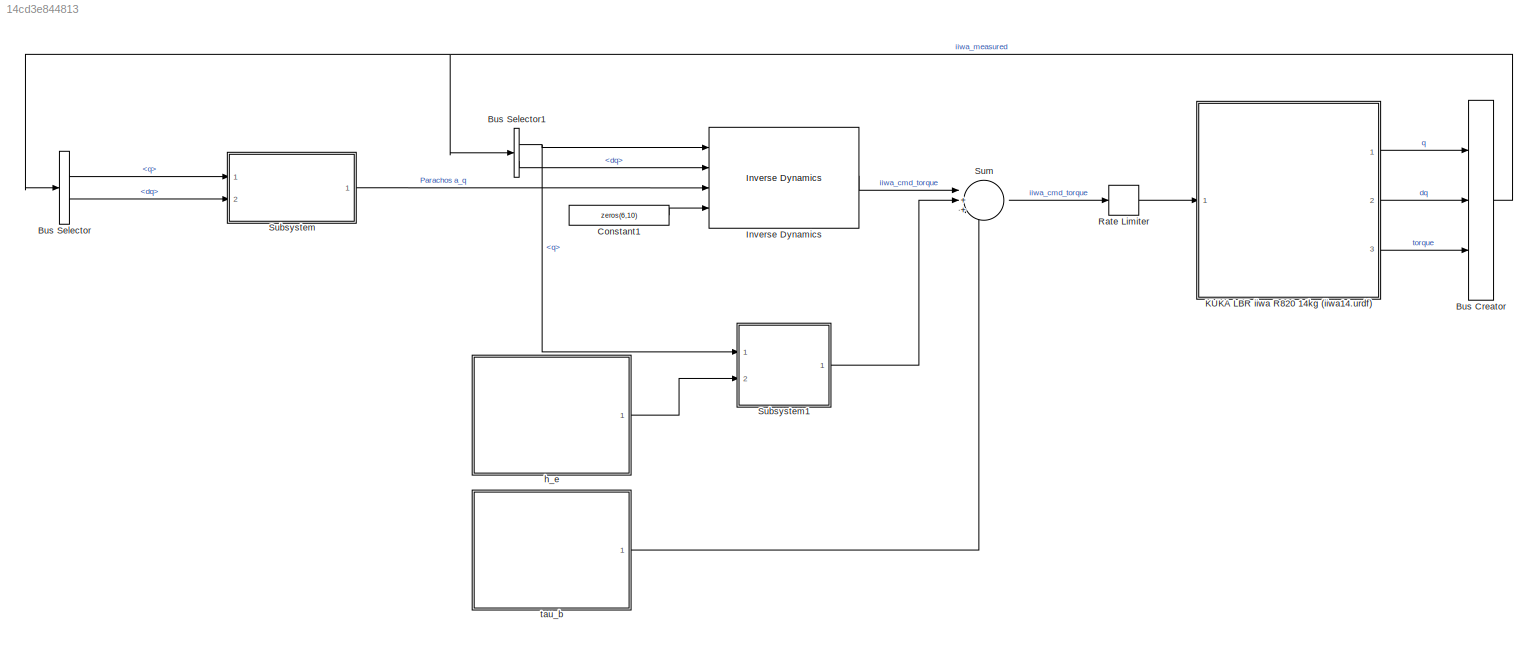
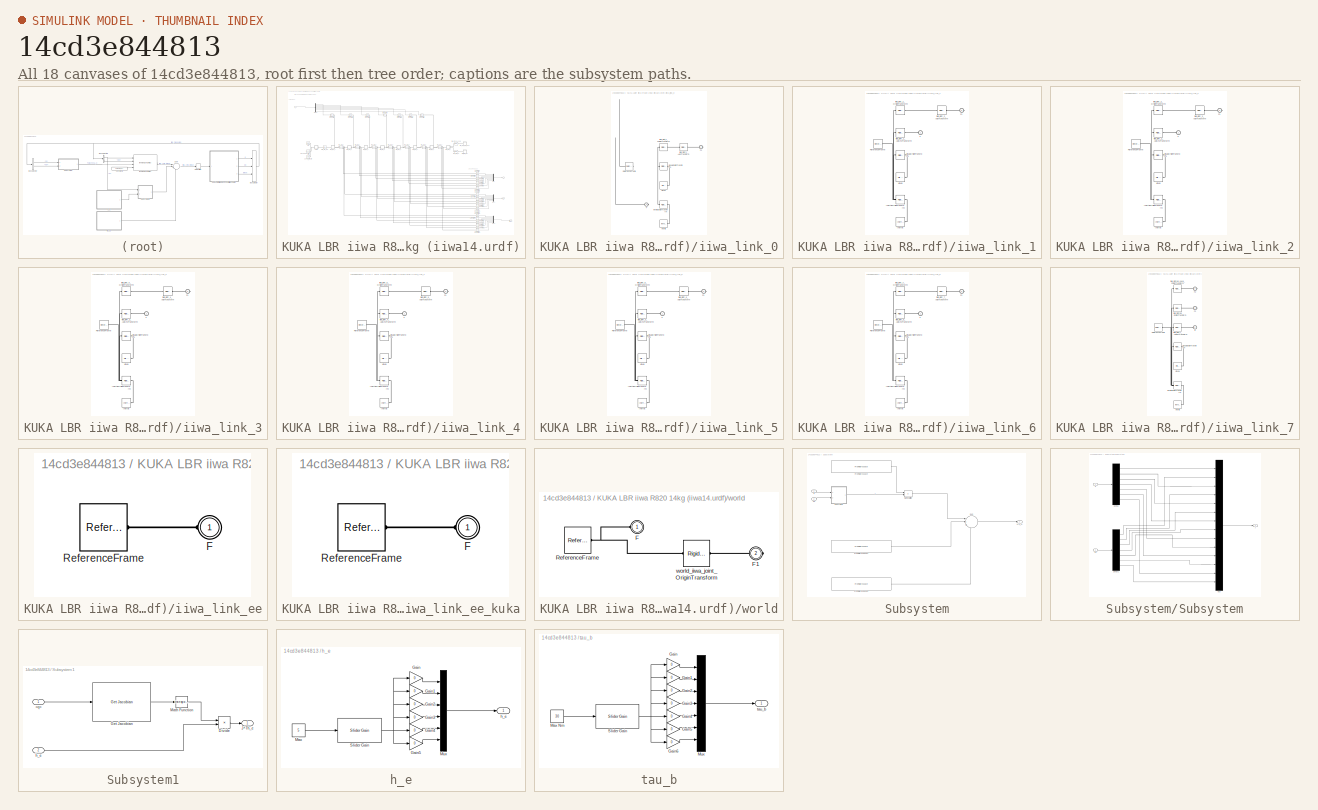
[diagram: thumbnail index - all 18 canvases of the model, root first then tree order]
MODEL slx_14cd3e844813
KIND model
CONFIG AbsTol = auto
CONFIG EnableMultiTasking = off
CONFIG FixedStep = dt
CONFIG MaxStep = auto
CONFIG MinStep = auto
CONFIG PostLoadFcn = % load iiwa robot mesh for visualization\niiwa14_loadMesh()
CONFIG RelTol = 1e-3
CONFIG SampleTimeConstraint = Unconstrained
CONFIG SolverName = ode1
CONFIG StartTime = 0.0
CONFIG StopTime = t_end
BLOCK [BusCreator] Bus Creator
  DisplayOption = bar
  InheritFromInputs = on
  Inputs = 3
  Ports = [3, 1]
BLOCK [BusSelector] Bus Selector
  OutputSignals = q,dq
  Ports = [1, 2]
BLOCK [BusSelector] Bus Selector1
  OutputSignals = q,dq
  Ports = [1, 2]
BLOCK [Constant] Constant1
  Value = zeros(6,10)
BLOCK [Reference] Inverse Dynamics  REF=robotmaniplib/Inverse Dynamics
  Ports = [4, 1]
  SourceBlock = robotmaniplib/Inverse Dynamics
  SourceProductBaseCode = RO
  SourceType = Inverse Dynamics
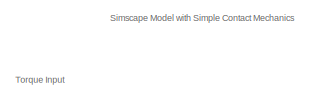
[diagram: KUKA LBR iiwa R820 14kg (iiwa14.urdf) - part 1/5, top left region]
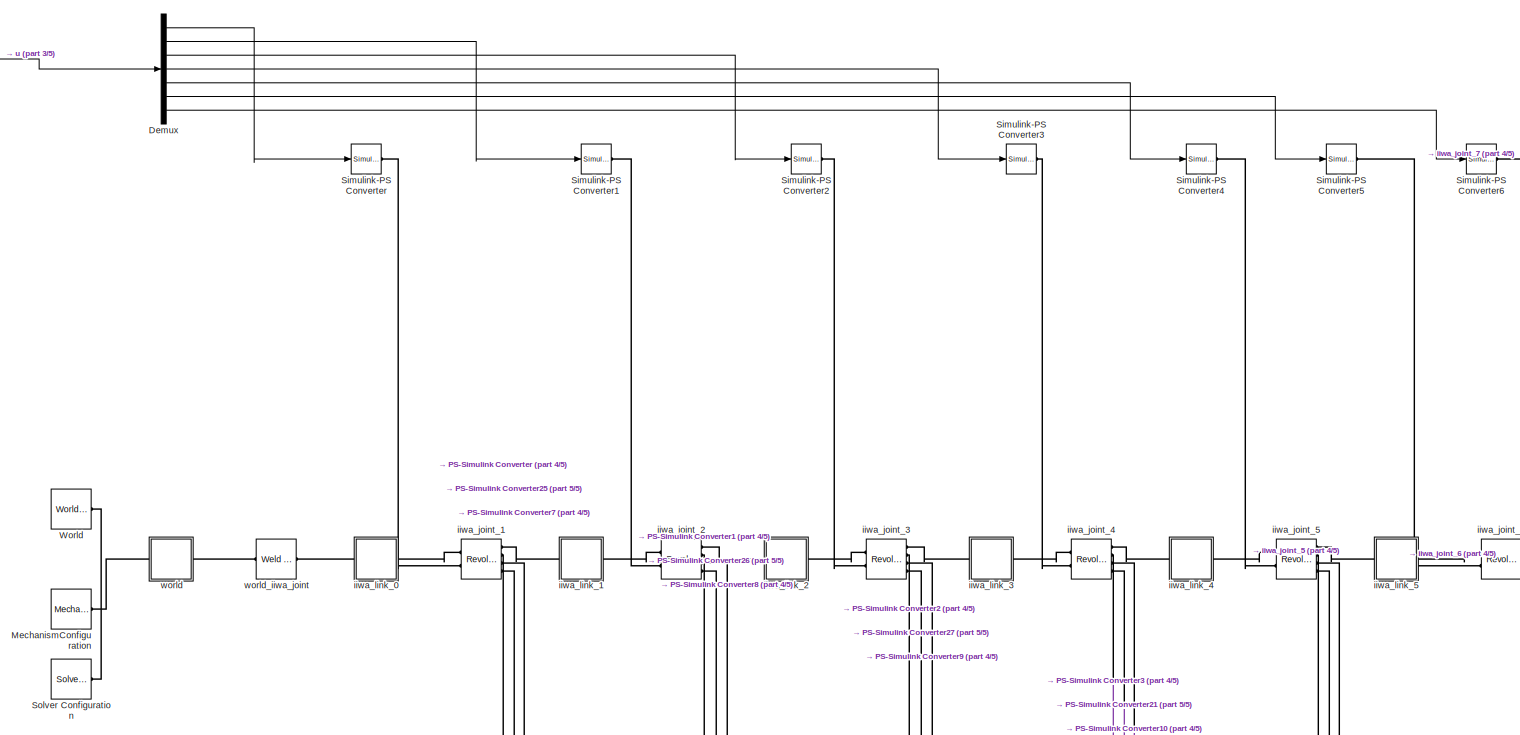
[diagram: KUKA LBR iiwa R820 14kg (iiwa14.urdf) - part 2/5, top center region]
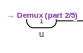
[diagram: KUKA LBR iiwa R820 14kg (iiwa14.urdf) - part 3/5, top left region]
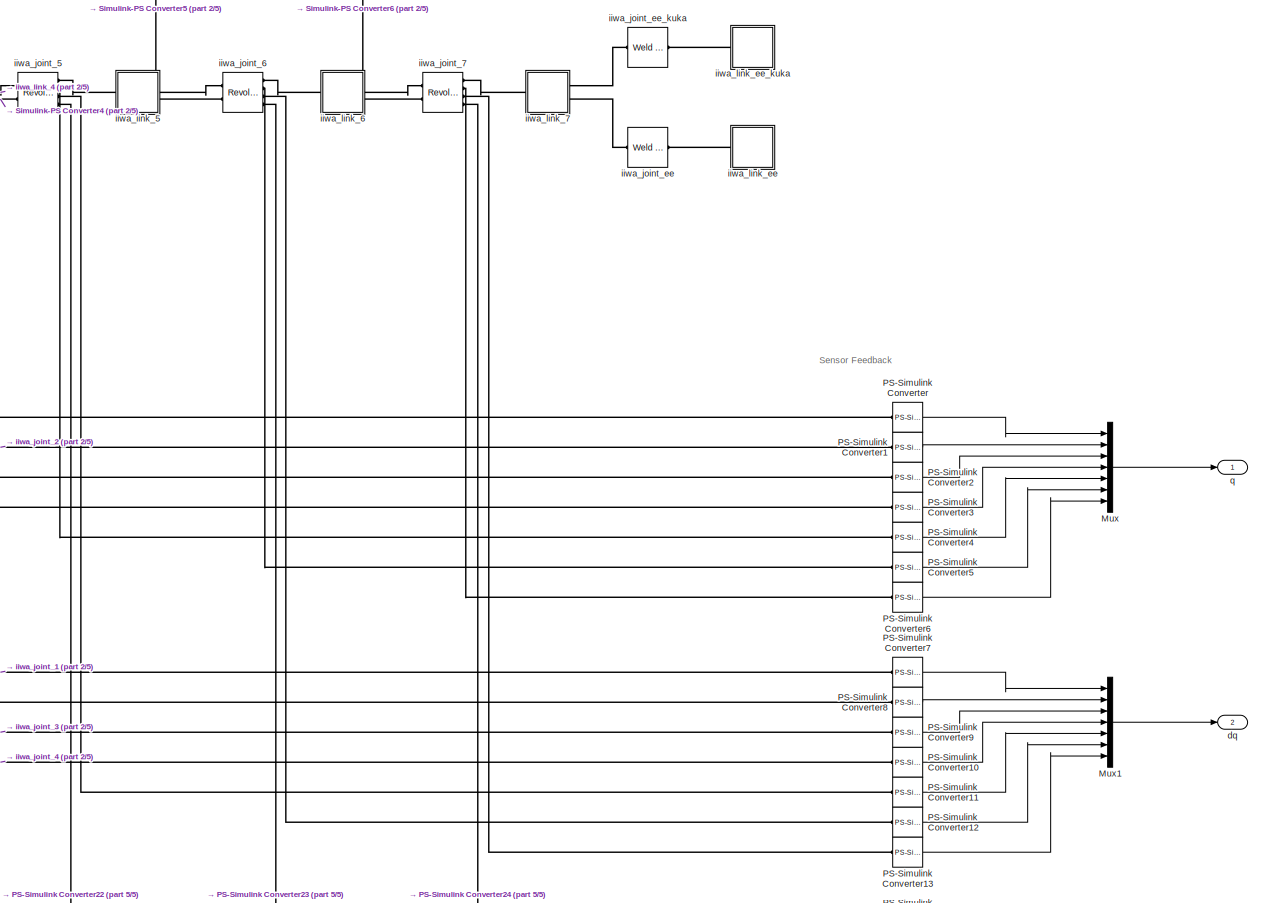
[diagram: KUKA LBR iiwa R820 14kg (iiwa14.urdf) - part 4/5, middle right region]
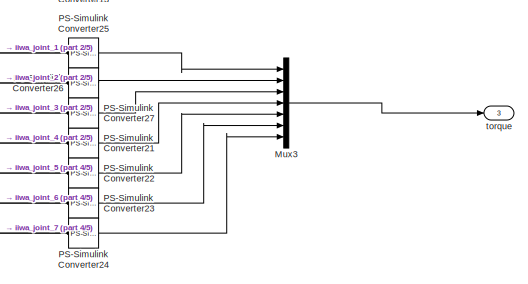
[diagram: KUKA LBR iiwa R820 14kg (iiwa14.urdf) - part 5/5, bottom right region]
BLOCK [SubSystem] KUKA LBR iiwa R820 14kg (iiwa14.urdf)
  Ports = [1, 3]
  RequestExecContextInheritance = off
BLOCK [Demux] KUKA LBR iiwa R820 14kg (iiwa14.urdf)/Demux
  Outputs = 7
  Ports = [1, 7]
BLOCK [Reference] KUKA LBR iiwa R820 14kg (iiwa14.urdf)/MechanismConfiguration  REF=sm_lib/Utilities/Mechanism
Configuration
  Ports = [0, 0, 0, 0, 0, 0, 1]
  SourceBlock = sm_lib/Utilities/Mechanism\nConfiguration
  SourceProductBaseCode = MS
  SourceType = Mechanism\nConfiguration
BLOCK [Mux] KUKA LBR iiwa R820 14kg (iiwa14.urdf)/Mux
  DisplayOption = bar
  Inputs = 7
  Ports = [7, 1]
BLOCK [Mux] KUKA LBR iiwa R820 14kg (iiwa14.urdf)/Mux1
  DisplayOption = bar
  Inputs = 7
  Ports = [7, 1]
BLOCK [Mux] KUKA LBR iiwa R820 14kg (iiwa14.urdf)/Mux3
  DisplayOption = bar
  Inputs = 7
  Ports = [7, 1]
BLOCK [Reference] KUKA LBR iiwa R820 14kg (iiwa14.urdf)/PS-Simulink Converter  REF=nesl_utility/PS-Simulink
Converter
  Ports = [0, 1, 0, 0, 0, 1]
  SourceBlock = nesl_utility/PS-Simulink\nConverter
  SourceProductBaseCode = SS
  SourceType = PS-Simulink\nConverter
BLOCK [Reference] KUKA LBR iiwa R820 14kg (iiwa14.urdf)/PS-Simulink Converter1  REF=nesl_utility/PS-Simulink
Converter
  Ports = [0, 1, 0, 0, 0, 1]
  SourceBlock = nesl_utility/PS-Simulink\nConverter
  SourceProductBaseCode = SS
  SourceType = PS-Simulink\nConverter
BLOCK [Reference] KUKA LBR iiwa R820 14kg (iiwa14.urdf)/PS-Simulink Converter10  REF=nesl_utility/PS-Simulink
Converter
  Ports = [0, 1, 0, 0, 0, 1]
  SourceBlock = nesl_utility/PS-Simulink\nConverter
  SourceProductBaseCode = SS
  SourceType = PS-Simulink\nConverter
BLOCK [Reference] KUKA LBR iiwa R820 14kg (iiwa14.urdf)/PS-Simulink Converter11  REF=nesl_utility/PS-Simulink
Converter
  Ports = [0, 1, 0, 0, 0, 1]
  SourceBlock = nesl_utility/PS-Simulink\nConverter
  SourceProductBaseCode = SS
  SourceType = PS-Simulink\nConverter
BLOCK [Reference] KUKA LBR iiwa R820 14kg (iiwa14.urdf)/PS-Simulink Converter12  REF=nesl_utility/PS-Simulink
Converter
  Ports = [0, 1, 0, 0, 0, 1]
  SourceBlock = nesl_utility/PS-Simulink\nConverter
  SourceProductBaseCode = SS
  SourceType = PS-Simulink\nConverter
BLOCK [Reference] KUKA LBR iiwa R820 14kg (iiwa14.urdf)/PS-Simulink Converter13  REF=nesl_utility/PS-Simulink
Converter
  Ports = [0, 1, 0, 0, 0, 1]
  SourceBlock = nesl_utility/PS-Simulink\nConverter
  SourceProductBaseCode = SS
  SourceType = PS-Simulink\nConverter
BLOCK [Reference] KUKA LBR iiwa R820 14kg (iiwa14.urdf)/PS-Simulink Converter2  REF=nesl_utility/PS-Simulink
Converter
  Ports = [0, 1, 0, 0, 0, 1]
  SourceBlock = nesl_utility/PS-Simulink\nConverter
  SourceProductBaseCode = SS
  SourceType = PS-Simulink\nConverter
BLOCK [Reference] KUKA LBR iiwa R820 14kg (iiwa14.urdf)/PS-Simulink Converter21  REF=nesl_utility/PS-Simulink
Converter
  Ports = [0, 1, 0, 0, 0, 1]
  SourceBlock = nesl_utility/PS-Simulink\nConverter
  SourceProductBaseCode = SS
  SourceType = PS-Simulink\nConverter
BLOCK [Reference] KUKA LBR iiwa R820 14kg (iiwa14.urdf)/PS-Simulink Converter22  REF=nesl_utility/PS-Simulink
Converter
  Ports = [0, 1, 0, 0, 0, 1]
  SourceBlock = nesl_utility/PS-Simulink\nConverter
  SourceProductBaseCode = SS
  SourceType = PS-Simulink\nConverter
BLOCK [Reference] KUKA LBR iiwa R820 14kg (iiwa14.urdf)/PS-Simulink Converter23  REF=nesl_utility/PS-Simulink
Converter
  Ports = [0, 1, 0, 0, 0, 1]
  SourceBlock = nesl_utility/PS-Simulink\nConverter
  SourceProductBaseCode = SS
  SourceType = PS-Simulink\nConverter
BLOCK [Reference] KUKA LBR iiwa R820 14kg (iiwa14.urdf)/PS-Simulink Converter24  REF=nesl_utility/PS-Simulink
Converter
  Ports = [0, 1, 0, 0, 0, 1]
  SourceBlock = nesl_utility/PS-Simulink\nConverter
  SourceProductBaseCode = SS
  SourceType = PS-Simulink\nConverter
BLOCK [Reference] KUKA LBR iiwa R820 14kg (iiwa14.urdf)/PS-Simulink Converter25  REF=nesl_utility/PS-Simulink
Converter
  Ports = [0, 1, 0, 0, 0, 1]
  SourceBlock = nesl_utility/PS-Simulink\nConverter
  SourceProductBaseCode = SS
  SourceType = PS-Simulink\nConverter
BLOCK [Reference] KUKA LBR iiwa R820 14kg (iiwa14.urdf)/PS-Simulink Converter26  REF=nesl_utility/PS-Simulink
Converter
  Ports = [0, 1, 0, 0, 0, 1]
  SourceBlock = nesl_utility/PS-Simulink\nConverter
  SourceProductBaseCode = SS
  SourceType = PS-Simulink\nConverter
BLOCK [Reference] KUKA LBR iiwa R820 14kg (iiwa14.urdf)/PS-Simulink Converter27  REF=nesl_utility/PS-Simulink
Converter
  Ports = [0, 1, 0, 0, 0, 1]
  SourceBlock = nesl_utility/PS-Simulink\nConverter
  SourceProductBaseCode = SS
  SourceType = PS-Simulink\nConverter
BLOCK [Reference] KUKA LBR iiwa R820 14kg (iiwa14.urdf)/PS-Simulink Converter3  REF=nesl_utility/PS-Simulink
Converter
  Ports = [0, 1, 0, 0, 0, 1]
  SourceBlock = nesl_utility/PS-Simulink\nConverter
  SourceProductBaseCode = SS
  SourceType = PS-Simulink\nConverter
BLOCK [Reference] KUKA LBR iiwa R820 14kg (iiwa14.urdf)/PS-Simulink Converter4  REF=nesl_utility/PS-Simulink
Converter
  Ports = [0, 1, 0, 0, 0, 1]
  SourceBlock = nesl_utility/PS-Simulink\nConverter
  SourceProductBaseCode = SS
  SourceType = PS-Simulink\nConverter
BLOCK [Reference] KUKA LBR iiwa R820 14kg (iiwa14.urdf)/PS-Simulink Converter5  REF=nesl_utility/PS-Simulink
Converter
  Ports = [0, 1, 0, 0, 0, 1]
  SourceBlock = nesl_utility/PS-Simulink\nConverter
  SourceProductBaseCode = SS
  SourceType = PS-Simulink\nConverter
BLOCK [Reference] KUKA LBR iiwa R820 14kg (iiwa14.urdf)/PS-Simulink Converter6  REF=nesl_utility/PS-Simulink
Converter
  Ports = [0, 1, 0, 0, 0, 1]
  SourceBlock = nesl_utility/PS-Simulink\nConverter
  SourceProductBaseCode = SS
  SourceType = PS-Simulink\nConverter
BLOCK [Reference] KUKA LBR iiwa R820 14kg (iiwa14.urdf)/PS-Simulink Converter7  REF=nesl_utility/PS-Simulink
Converter
  Ports = [0, 1, 0, 0, 0, 1]
  SourceBlock = nesl_utility/PS-Simulink\nConverter
  SourceProductBaseCode = SS
  SourceType = PS-Simulink\nConverter
BLOCK [Reference] KUKA LBR iiwa R820 14kg (iiwa14.urdf)/PS-Simulink Converter8  REF=nesl_utility/PS-Simulink
Converter
  Ports = [0, 1, 0, 0, 0, 1]
  SourceBlock = nesl_utility/PS-Simulink\nConverter
  SourceProductBaseCode = SS
  SourceType = PS-Simulink\nConverter
BLOCK [Reference] KUKA LBR iiwa R820 14kg (iiwa14.urdf)/PS-Simulink Converter9  REF=nesl_utility/PS-Simulink
Converter
  Ports = [0, 1, 0, 0, 0, 1]
  SourceBlock = nesl_utility/PS-Simulink\nConverter
  SourceProductBaseCode = SS
  SourceType = PS-Simulink\nConverter
BLOCK [Reference] KUKA LBR iiwa R820 14kg (iiwa14.urdf)/Simulink-PS Converter  REF=nesl_utility/Simulink-PS
Converter
  Ports = [1, 0, 0, 0, 0, 0, 1]
  SourceBlock = nesl_utility/Simulink-PS\nConverter
  SourceProductBaseCode = SS
  SourceType = Simulink-PS\nConverter
BLOCK [Reference] KUKA LBR iiwa R820 14kg (iiwa14.urdf)/Simulink-PS Converter1  REF=nesl_utility/Simulink-PS
Converter
  Ports = [1, 0, 0, 0, 0, 0, 1]
  SourceBlock = nesl_utility/Simulink-PS\nConverter
  SourceProductBaseCode = SS
  SourceType = Simulink-PS\nConverter
BLOCK [Reference] KUKA LBR iiwa R820 14kg (iiwa14.urdf)/Simulink-PS Converter2  REF=nesl_utility/Simulink-PS
Converter
  Ports = [1, 0, 0, 0, 0, 0, 1]
  SourceBlock = nesl_utility/Simulink-PS\nConverter
  SourceProductBaseCode = SS
  SourceType = Simulink-PS\nConverter
BLOCK [Reference] KUKA LBR iiwa R820 14kg (iiwa14.urdf)/Simulink-PS Converter3  REF=nesl_utility/Simulink-PS
Converter
  Ports = [1, 0, 0, 0, 0, 0, 1]
  SourceBlock = nesl_utility/Simulink-PS\nConverter
  SourceProductBaseCode = SS
  SourceType = Simulink-PS\nConverter
BLOCK [Reference] KUKA LBR iiwa R820 14kg (iiwa14.urdf)/Simulink-PS Converter4  REF=nesl_utility/Simulink-PS
Converter
  Ports = [1, 0, 0, 0, 0, 0, 1]
  SourceBlock = nesl_utility/Simulink-PS\nConverter
  SourceProductBaseCode = SS
  SourceType = Simulink-PS\nConverter
BLOCK [Reference] KUKA LBR iiwa R820 14kg (iiwa14.urdf)/Simulink-PS Converter5  REF=nesl_utility/Simulink-PS
Converter
  Ports = [1, 0, 0, 0, 0, 0, 1]
  SourceBlock = nesl_utility/Simulink-PS\nConverter
  SourceProductBaseCode = SS
  SourceType = Simulink-PS\nConverter
BLOCK [Reference] KUKA LBR iiwa R820 14kg (iiwa14.urdf)/Simulink-PS Converter6  REF=nesl_utility/Simulink-PS
Converter
  Ports = [1, 0, 0, 0, 0, 0, 1]
  SourceBlock = nesl_utility/Simulink-PS\nConverter
  SourceProductBaseCode = SS
  SourceType = Simulink-PS\nConverter
BLOCK [Reference] KUKA LBR iiwa R820 14kg (iiwa14.urdf)/Solver Configuration  REF=nesl_utility/Solver
Configuration
  Ports = [0, 0, 0, 0, 0, 0, 1]
  SourceBlock = nesl_utility/Solver\nConfiguration
  SourceProductBaseCode = SS
  SourceType = Solver\nConfiguration
BLOCK [Reference] KUKA LBR iiwa R820 14kg (iiwa14.urdf)/World  REF=sm_lib/Frames and
Transforms/World Frame
  Ports = [0, 0, 0, 0, 0, 0, 1]
  SourceBlock = sm_lib/Frames and\nTransforms/World Frame
  SourceProductBaseCode = MS
  SourceType = World Frame
BLOCK [Outport] KUKA LBR iiwa R820 14kg (iiwa14.urdf)/dq
  Port = 2
  VectorParamsAs1DForOutWhenUnconnected = off
BLOCK [Reference] KUKA LBR iiwa R820 14kg (iiwa14.urdf)/iiwa_joint_1  REF=sm_lib/Joints/Revolute Joint
  Ports = [0, 0, 0, 0, 0, 2, 4]
  SourceBlock = sm_lib/Joints/Revolute Joint
  SourceProductBaseCode = MS
  SourceType = Revolute Joint
BLOCK [Reference] KUKA LBR iiwa R820 14kg (iiwa14.urdf)/iiwa_joint_2  REF=sm_lib/Joints/Revolute Joint
  Ports = [0, 0, 0, 0, 0, 2, 4]
  SourceBlock = sm_lib/Joints/Revolute Joint
  SourceProductBaseCode = MS
  SourceType = Revolute Joint
BLOCK [Reference] KUKA LBR iiwa R820 14kg (iiwa14.urdf)/iiwa_joint_3  REF=sm_lib/Joints/Revolute Joint
  Ports = [0, 0, 0, 0, 0, 2, 4]
  SourceBlock = sm_lib/Joints/Revolute Joint
  SourceProductBaseCode = MS
  SourceType = Revolute Joint
BLOCK [Reference] KUKA LBR iiwa R820 14kg (iiwa14.urdf)/iiwa_joint_4  REF=sm_lib/Joints/Revolute Joint
  Ports = [0, 0, 0, 0, 0, 2, 4]
  SourceBlock = sm_lib/Joints/Revolute Joint
  SourceProductBaseCode = MS
  SourceType = Revolute Joint
BLOCK [Reference] KUKA LBR iiwa R820 14kg (iiwa14.urdf)/iiwa_joint_5  REF=sm_lib/Joints/Revolute Joint
  Ports = [0, 0, 0, 0, 0, 2, 4]
  SourceBlock = sm_lib/Joints/Revolute Joint
  SourceProductBaseCode = MS
  SourceType = Revolute Joint
BLOCK [Reference] KUKA LBR iiwa R820 14kg (iiwa14.urdf)/iiwa_joint_6  REF=sm_lib/Joints/Revolute Joint
  Ports = [0, 0, 0, 0, 0, 2, 4]
  SourceBlock = sm_lib/Joints/Revolute Joint
  SourceProductBaseCode = MS
  SourceType = Revolute Joint
BLOCK [Reference] KUKA LBR iiwa R820 14kg (iiwa14.urdf)/iiwa_joint_7  REF=sm_lib/Joints/Revolute Joint
  Ports = [0, 0, 0, 0, 0, 2, 4]
  SourceBlock = sm_lib/Joints/Revolute Joint
  SourceProductBaseCode = MS
  SourceType = Revolute Joint
BLOCK [Reference] KUKA LBR iiwa R820 14kg (iiwa14.urdf)/iiwa_joint_ee  REF=sm_lib/Joints/Weld Joint
  Ports = [0, 0, 0, 0, 0, 1, 1]
  SourceBlock = sm_lib/Joints/Weld Joint
  SourceProductBaseCode = MS
  SourceType = Weld Joint
BLOCK [Reference] KUKA LBR iiwa R820 14kg (iiwa14.urdf)/iiwa_joint_ee_kuka  REF=sm_lib/Joints/Weld Joint
  Ports = [0, 0, 0, 0, 0, 1, 1]
  SourceBlock = sm_lib/Joints/Weld Joint
  SourceProductBaseCode = MS
  SourceType = Weld Joint
BLOCK [SubSystem] KUKA LBR iiwa R820 14kg (iiwa14.urdf)/iiwa_link_0
  Ports = [0, 0, 0, 0, 0, 1, 1]
  RequestExecContextInheritance = off
BLOCK [PMIOPort] KUKA LBR iiwa R820 14kg (iiwa14.urdf)/iiwa_link_0/F
  Side = Left
BLOCK [PMIOPort] KUKA LBR iiwa R820 14kg (iiwa14.urdf)/iiwa_link_0/F1
  Port = 2
  Side = Right
BLOCK [Reference] KUKA LBR iiwa R820 14kg (iiwa14.urdf)/iiwa_link_0/Inertia  REF=sm_lib/Body Elements/Inertia
  Ports = [0, 0, 0, 0, 0, 0, 1]
  SourceBlock = sm_lib/Body Elements/Inertia
  SourceProductBaseCode = MS
  SourceType = Inertia
BLOCK [Reference] KUKA LBR iiwa R820 14kg (iiwa14.urdf)/iiwa_link_0/InertiaOriginTransform  REF=sm_lib/Frames and
Transforms/Rigid
Transform
  Ports = [0, 0, 0, 0, 0, 1, 1]
  SourceBlock = sm_lib/Frames and\nTransforms/Rigid\nTransform
  SourceProductBaseCode = MS
  SourceType = Rigid\nTransform
BLOCK [Reference] KUKA LBR iiwa R820 14kg (iiwa14.urdf)/iiwa_link_0/ReferenceFrame  REF=sm_lib/Frames and
Transforms/Reference
Frame
  Ports = [0, 0, 0, 0, 0, 0, 1]
  SourceBlock = sm_lib/Frames and\nTransforms/Reference\nFrame
  SourceProductBaseCode = MS
  SourceType = Reference\nFrame
BLOCK [Reference] KUKA LBR iiwa R820 14kg (iiwa14.urdf)/iiwa_link_0/Visual  REF=sm_lib/Body Elements/File Solid
  Ports = [0, 0, 0, 0, 0, 0, 1]
  SourceBlock = sm_lib/Body Elements/File Solid
  SourceProductBaseCode = MS
  SourceType = File Solid
BLOCK [Reference] KUKA LBR iiwa R820 14kg (iiwa14.urdf)/iiwa_link_0/VisualOriginTransform  REF=sm_lib/Frames and
Transforms/Rigid
Transform
  Ports = [0, 0, 0, 0, 0, 1, 1]
  SourceBlock = sm_lib/Frames and\nTransforms/Rigid\nTransform
  SourceProductBaseCode = MS
  SourceType = Rigid\nTransform
BLOCK [Reference] KUKA LBR iiwa R820 14kg (iiwa14.urdf)/iiwa_link_0/iiwa_joint_1_AxisTransform  REF=sm_lib/Frames and
Transforms/Rigid
Transform
  Ports = [0, 0, 0, 0, 0, 1, 1]
  SourceBlock = sm_lib/Frames and\nTransforms/Rigid\nTransform
  SourceProductBaseCode = MS
  SourceType = Rigid\nTransform
BLOCK [Reference] KUKA LBR iiwa R820 14kg (iiwa14.urdf)/iiwa_link_0/iiwa_joint_1_OriginTransform  REF=sm_lib/Frames and
Transforms/Rigid
Transform
  Ports = [0, 0, 0, 0, 0, 1, 1]
  SourceBlock = sm_lib/Frames and\nTransforms/Rigid\nTransform
  SourceProductBaseCode = MS
  SourceType = Rigid\nTransform
BLOCK [SubSystem] KUKA LBR iiwa R820 14kg (iiwa14.urdf)/iiwa_link_1
  Ports = [0, 0, 0, 0, 0, 1, 1]
  RequestExecContextInheritance = off
BLOCK [PMIOPort] KUKA LBR iiwa R820 14kg (iiwa14.urdf)/iiwa_link_1/F
  Side = Left
BLOCK [PMIOPort] KUKA LBR iiwa R820 14kg (iiwa14.urdf)/iiwa_link_1/F1
  Port = 2
  Side = Right
BLOCK [Reference] KUKA LBR iiwa R820 14kg (iiwa14.urdf)/iiwa_link_1/Inertia  REF=sm_lib/Body Elements/Inertia
  Ports = [0, 0, 0, 0, 0, 0, 1]
  SourceBlock = sm_lib/Body Elements/Inertia
  SourceProductBaseCode = MS
  SourceType = Inertia
BLOCK [Reference] KUKA LBR iiwa R820 14kg (iiwa14.urdf)/iiwa_link_1/InertiaOriginTransform  REF=sm_lib/Frames and
Transforms/Rigid
Transform
  Ports = [0, 0, 0, 0, 0, 1, 1]
  SourceBlock = sm_lib/Frames and\nTransforms/Rigid\nTransform
  SourceProductBaseCode = MS
  SourceType = Rigid\nTransform
BLOCK [Reference] KUKA LBR iiwa R820 14kg (iiwa14.urdf)/iiwa_link_1/ReferenceFrame  REF=sm_lib/Frames and
Transforms/Reference
Frame
  Ports = [0, 0, 0, 0, 0, 0, 1]
  SourceBlock = sm_lib/Frames and\nTransforms/Reference\nFrame
  SourceProductBaseCode = MS
  SourceType = Reference\nFrame
BLOCK [Reference] KUKA LBR iiwa R820 14kg (iiwa14.urdf)/iiwa_link_1/Visual  REF=sm_lib/Body Elements/File Solid
  Ports = [0, 0, 0, 0, 0, 0, 1]
  SourceBlock = sm_lib/Body Elements/File Solid
  SourceProductBaseCode = MS
  SourceType = File Solid
BLOCK [Reference] KUKA LBR iiwa R820 14kg (iiwa14.urdf)/iiwa_link_1/VisualOriginTransform  REF=sm_lib/Frames and
Transforms/Rigid
Transform
  Ports = [0, 0, 0, 0, 0, 1, 1]
  SourceBlock = sm_lib/Frames and\nTransforms/Rigid\nTransform
  SourceProductBaseCode = MS
  SourceType = Rigid\nTransform
BLOCK [Reference] KUKA LBR iiwa R820 14kg (iiwa14.urdf)/iiwa_link_1/iiwa_joint_1_AxisInvTransform  REF=sm_lib/Frames and
Transforms/Rigid
Transform
  Ports = [0, 0, 0, 0, 0, 1, 1]
  SourceBlock = sm_lib/Frames and\nTransforms/Rigid\nTransform
  SourceProductBaseCode = MS
  SourceType = Rigid\nTransform
BLOCK [Reference] KUKA LBR iiwa R820 14kg (iiwa14.urdf)/iiwa_link_1/iiwa_joint_2_AxisTransform  REF=sm_lib/Frames and
Transforms/Rigid
Transform
  Ports = [0, 0, 0, 0, 0, 1, 1]
  SourceBlock = sm_lib/Frames and\nTransforms/Rigid\nTransform
  SourceProductBaseCode = MS
  SourceType = Rigid\nTransform
BLOCK [Reference] KUKA LBR iiwa R820 14kg (iiwa14.urdf)/iiwa_link_1/iiwa_joint_2_OriginTransform  REF=sm_lib/Frames and
Transforms/Rigid
Transform
  Ports = [0, 0, 0, 0, 0, 1, 1]
  SourceBlock = sm_lib/Frames and\nTransforms/Rigid\nTransform
  SourceProductBaseCode = MS
  SourceType = Rigid\nTransform
BLOCK [SubSystem] KUKA LBR iiwa R820 14kg (iiwa14.urdf)/iiwa_link_2
  Ports = [0, 0, 0, 0, 0, 1, 1]
  RequestExecContextInheritance = off
BLOCK [PMIOPort] KUKA LBR iiwa R820 14kg (iiwa14.urdf)/iiwa_link_2/F
  Side = Left
BLOCK [PMIOPort] KUKA LBR iiwa R820 14kg (iiwa14.urdf)/iiwa_link_2/F1
  Port = 2
  Side = Right
BLOCK [Reference] KUKA LBR iiwa R820 14kg (iiwa14.urdf)/iiwa_link_2/Inertia  REF=sm_lib/Body Elements/Inertia
  Ports = [0, 0, 0, 0, 0, 0, 1]
  SourceBlock = sm_lib/Body Elements/Inertia
  SourceProductBaseCode = MS
  SourceType = Inertia
BLOCK [Reference] KUKA LBR iiwa R820 14kg (iiwa14.urdf)/iiwa_link_2/InertiaOriginTransform  REF=sm_lib/Frames and
Transforms/Rigid
Transform
  Ports = [0, 0, 0, 0, 0, 1, 1]
  SourceBlock = sm_lib/Frames and\nTransforms/Rigid\nTransform
  SourceProductBaseCode = MS
  SourceType = Rigid\nTransform
BLOCK [Reference] KUKA LBR iiwa R820 14kg (iiwa14.urdf)/iiwa_link_2/ReferenceFrame  REF=sm_lib/Frames and
Transforms/Reference
Frame
  Ports = [0, 0, 0, 0, 0, 0, 1]
  SourceBlock = sm_lib/Frames and\nTransforms/Reference\nFrame
  SourceProductBaseCode = MS
  SourceType = Reference\nFrame
BLOCK [Reference] KUKA LBR iiwa R820 14kg (iiwa14.urdf)/iiwa_link_2/Visual  REF=sm_lib/Body Elements/File Solid
  Ports = [0, 0, 0, 0, 0, 0, 1]
  SourceBlock = sm_lib/Body Elements/File Solid
  SourceProductBaseCode = MS
  SourceType = File Solid
BLOCK [Reference] KUKA LBR iiwa R820 14kg (iiwa14.urdf)/iiwa_link_2/VisualOriginTransform  REF=sm_lib/Frames and
Transforms/Rigid
Transform
  Ports = [0, 0, 0, 0, 0, 1, 1]
  SourceBlock = sm_lib/Frames and\nTransforms/Rigid\nTransform
  SourceProductBaseCode = MS
  SourceType = Rigid\nTransform
BLOCK [Reference] KUKA LBR iiwa R820 14kg (iiwa14.urdf)/iiwa_link_2/iiwa_joint_2_AxisInvTransform  REF=sm_lib/Frames and
Transforms/Rigid
Transform
  Ports = [0, 0, 0, 0, 0, 1, 1]
  SourceBlock = sm_lib/Frames and\nTransforms/Rigid\nTransform
  SourceProductBaseCode = MS
  SourceType = Rigid\nTransform
BLOCK [Reference] KUKA LBR iiwa R820 14kg (iiwa14.urdf)/iiwa_link_2/iiwa_joint_3_AxisTransform  REF=sm_lib/Frames and
Transforms/Rigid
Transform
  Ports = [0, 0, 0, 0, 0, 1, 1]
  SourceBlock = sm_lib/Frames and\nTransforms/Rigid\nTransform
  SourceProductBaseCode = MS
  SourceType = Rigid\nTransform
BLOCK [Reference] KUKA LBR iiwa R820 14kg (iiwa14.urdf)/iiwa_link_2/iiwa_joint_3_OriginTransform  REF=sm_lib/Frames and
Transforms/Rigid
Transform
  Ports = [0, 0, 0, 0, 0, 1, 1]
  SourceBlock = sm_lib/Frames and\nTransforms/Rigid\nTransform
  SourceProductBaseCode = MS
  SourceType = Rigid\nTransform
BLOCK [SubSystem] KUKA LBR iiwa R820 14kg (iiwa14.urdf)/iiwa_link_3
  Ports = [0, 0, 0, 0, 0, 1, 1]
  RequestExecContextInheritance = off
BLOCK [PMIOPort] KUKA LBR iiwa R820 14kg (iiwa14.urdf)/iiwa_link_3/F
  Side = Left
BLOCK [PMIOPort] KUKA LBR iiwa R820 14kg (iiwa14.urdf)/iiwa_link_3/F1
  Port = 2
  Side = Right
BLOCK [Reference] KUKA LBR iiwa R820 14kg (iiwa14.urdf)/iiwa_link_3/Inertia  REF=sm_lib/Body Elements/Inertia
  Ports = [0, 0, 0, 0, 0, 0, 1]
  SourceBlock = sm_lib/Body Elements/Inertia
  SourceProductBaseCode = MS
  SourceType = Inertia
BLOCK [Reference] KUKA LBR iiwa R820 14kg (iiwa14.urdf)/iiwa_link_3/InertiaOriginTransform  REF=sm_lib/Frames and
Transforms/Rigid
Transform
  Ports = [0, 0, 0, 0, 0, 1, 1]
  SourceBlock = sm_lib/Frames and\nTransforms/Rigid\nTransform
  SourceProductBaseCode = MS
  SourceType = Rigid\nTransform
BLOCK [Reference] KUKA LBR iiwa R820 14kg (iiwa14.urdf)/iiwa_link_3/ReferenceFrame  REF=sm_lib/Frames and
Transforms/Reference
Frame
  Ports = [0, 0, 0, 0, 0, 0, 1]
  SourceBlock = sm_lib/Frames and\nTransforms/Reference\nFrame
  SourceProductBaseCode = MS
  SourceType = Reference\nFrame
BLOCK [Reference] KUKA LBR iiwa R820 14kg (iiwa14.urdf)/iiwa_link_3/Visual  REF=sm_lib/Body Elements/File Solid
  Ports = [0, 0, 0, 0, 0, 0, 1]
  SourceBlock = sm_lib/Body Elements/File Solid
  SourceProductBaseCode = MS
  SourceType = File Solid
BLOCK [Reference] KUKA LBR iiwa R820 14kg (iiwa14.urdf)/iiwa_link_3/VisualOriginTransform  REF=sm_lib/Frames and
Transforms/Rigid
Transform
  Ports = [0, 0, 0, 0, 0, 1, 1]
  SourceBlock = sm_lib/Frames and\nTransforms/Rigid\nTransform
  SourceProductBaseCode = MS
  SourceType = Rigid\nTransform
BLOCK [Reference] KUKA LBR iiwa R820 14kg (iiwa14.urdf)/iiwa_link_3/iiwa_joint_3_AxisInvTransform  REF=sm_lib/Frames and
Transforms/Rigid
Transform
  Ports = [0, 0, 0, 0, 0, 1, 1]
  SourceBlock = sm_lib/Frames and\nTransforms/Rigid\nTransform
  SourceProductBaseCode = MS
  SourceType = Rigid\nTransform
BLOCK [Reference] KUKA LBR iiwa R820 14kg (iiwa14.urdf)/iiwa_link_3/iiwa_joint_4_AxisTransform  REF=sm_lib/Frames and
Transforms/Rigid
Transform
  Ports = [0, 0, 0, 0, 0, 1, 1]
  SourceBlock = sm_lib/Frames and\nTransforms/Rigid\nTransform
  SourceProductBaseCode = MS
  SourceType = Rigid\nTransform
BLOCK [Reference] KUKA LBR iiwa R820 14kg (iiwa14.urdf)/iiwa_link_3/iiwa_joint_4_OriginTransform  REF=sm_lib/Frames and
Transforms/Rigid
Transform
  Ports = [0, 0, 0, 0, 0, 1, 1]
  SourceBlock = sm_lib/Frames and\nTransforms/Rigid\nTransform
  SourceProductBaseCode = MS
  SourceType = Rigid\nTransform
BLOCK [SubSystem] KUKA LBR iiwa R820 14kg (iiwa14.urdf)/iiwa_link_4
  Ports = [0, 0, 0, 0, 0, 1, 1]
  RequestExecContextInheritance = off
BLOCK [PMIOPort] KUKA LBR iiwa R820 14kg (iiwa14.urdf)/iiwa_link_4/F
  Side = Left
BLOCK [PMIOPort] KUKA LBR iiwa R820 14kg (iiwa14.urdf)/iiwa_link_4/F1
  Port = 2
  Side = Right
BLOCK [Reference] KUKA LBR iiwa R820 14kg (iiwa14.urdf)/iiwa_link_4/Inertia  REF=sm_lib/Body Elements/Inertia
  Ports = [0, 0, 0, 0, 0, 0, 1]
  SourceBlock = sm_lib/Body Elements/Inertia
  SourceProductBaseCode = MS
  SourceType = Inertia
BLOCK [Reference] KUKA LBR iiwa R820 14kg (iiwa14.urdf)/iiwa_link_4/InertiaOriginTransform  REF=sm_lib/Frames and
Transforms/Rigid
Transform
  Ports = [0, 0, 0, 0, 0, 1, 1]
  SourceBlock = sm_lib/Frames and\nTransforms/Rigid\nTransform
  SourceProductBaseCode = MS
  SourceType = Rigid\nTransform
BLOCK [Reference] KUKA LBR iiwa R820 14kg (iiwa14.urdf)/iiwa_link_4/ReferenceFrame  REF=sm_lib/Frames and
Transforms/Reference
Frame
  Ports = [0, 0, 0, 0, 0, 0, 1]
  SourceBlock = sm_lib/Frames and\nTransforms/Reference\nFrame
  SourceProductBaseCode = MS
  SourceType = Reference\nFrame
BLOCK [Reference] KUKA LBR iiwa R820 14kg (iiwa14.urdf)/iiwa_link_4/Visual  REF=sm_lib/Body Elements/File Solid
  Ports = [0, 0, 0, 0, 0, 0, 1]
  SourceBlock = sm_lib/Body Elements/File Solid
  SourceProductBaseCode = MS
  SourceType = File Solid
BLOCK [Reference] KUKA LBR iiwa R820 14kg (iiwa14.urdf)/iiwa_link_4/VisualOriginTransform  REF=sm_lib/Frames and
Transforms/Rigid
Transform
  Ports = [0, 0, 0, 0, 0, 1, 1]
  SourceBlock = sm_lib/Frames and\nTransforms/Rigid\nTransform
  SourceProductBaseCode = MS
  SourceType = Rigid\nTransform
BLOCK [Reference] KUKA LBR iiwa R820 14kg (iiwa14.urdf)/iiwa_link_4/iiwa_joint_4_AxisInvTransform  REF=sm_lib/Frames and
Transforms/Rigid
Transform
  Ports = [0, 0, 0, 0, 0, 1, 1]
  SourceBlock = sm_lib/Frames and\nTransforms/Rigid\nTransform
  SourceProductBaseCode = MS
  SourceType = Rigid\nTransform
BLOCK [Reference] KUKA LBR iiwa R820 14kg (iiwa14.urdf)/iiwa_link_4/iiwa_joint_5_AxisTransform  REF=sm_lib/Frames and
Transforms/Rigid
Transform
  Ports = [0, 0, 0, 0, 0, 1, 1]
  SourceBlock = sm_lib/Frames and\nTransforms/Rigid\nTransform
  SourceProductBaseCode = MS
  SourceType = Rigid\nTransform
BLOCK [Reference] KUKA LBR iiwa R820 14kg (iiwa14.urdf)/iiwa_link_4/iiwa_joint_5_OriginTransform  REF=sm_lib/Frames and
Transforms/Rigid
Transform
  Ports = [0, 0, 0, 0, 0, 1, 1]
  SourceBlock = sm_lib/Frames and\nTransforms/Rigid\nTransform
  SourceProductBaseCode = MS
  SourceType = Rigid\nTransform
BLOCK [SubSystem] KUKA LBR iiwa R820 14kg (iiwa14.urdf)/iiwa_link_5
  Ports = [0, 0, 0, 0, 0, 1, 1]
  RequestExecContextInheritance = off
BLOCK [PMIOPort] KUKA LBR iiwa R820 14kg (iiwa14.urdf)/iiwa_link_5/F
  Side = Left
BLOCK [PMIOPort] KUKA LBR iiwa R820 14kg (iiwa14.urdf)/iiwa_link_5/F1
  Port = 2
  Side = Right
BLOCK [Reference] KUKA LBR iiwa R820 14kg (iiwa14.urdf)/iiwa_link_5/Inertia  REF=sm_lib/Body Elements/Inertia
  Ports = [0, 0, 0, 0, 0, 0, 1]
  SourceBlock = sm_lib/Body Elements/Inertia
  SourceProductBaseCode = MS
  SourceType = Inertia
BLOCK [Reference] KUKA LBR iiwa R820 14kg (iiwa14.urdf)/iiwa_link_5/InertiaOriginTransform  REF=sm_lib/Frames and
Transforms/Rigid
Transform
  Ports = [0, 0, 0, 0, 0, 1, 1]
  SourceBlock = sm_lib/Frames and\nTransforms/Rigid\nTransform
  SourceProductBaseCode = MS
  SourceType = Rigid\nTransform
BLOCK [Reference] KUKA LBR iiwa R820 14kg (iiwa14.urdf)/iiwa_link_5/ReferenceFrame  REF=sm_lib/Frames and
Transforms/Reference
Frame
  Ports = [0, 0, 0, 0, 0, 0, 1]
  SourceBlock = sm_lib/Frames and\nTransforms/Reference\nFrame
  SourceProductBaseCode = MS
  SourceType = Reference\nFrame
BLOCK [Reference] KUKA LBR iiwa R820 14kg (iiwa14.urdf)/iiwa_link_5/Visual  REF=sm_lib/Body Elements/File Solid
  Ports = [0, 0, 0, 0, 0, 0, 1]
  SourceBlock = sm_lib/Body Elements/File Solid
  SourceProductBaseCode = MS
  SourceType = File Solid
BLOCK [Reference] KUKA LBR iiwa R820 14kg (iiwa14.urdf)/iiwa_link_5/VisualOriginTransform  REF=sm_lib/Frames and
Transforms/Rigid
Transform
  Ports = [0, 0, 0, 0, 0, 1, 1]
  SourceBlock = sm_lib/Frames and\nTransforms/Rigid\nTransform
  SourceProductBaseCode = MS
  SourceType = Rigid\nTransform
BLOCK [Reference] KUKA LBR iiwa R820 14kg (iiwa14.urdf)/iiwa_link_5/iiwa_joint_5_AxisInvTransform  REF=sm_lib/Frames and
Transforms/Rigid
Transform
  Ports = [0, 0, 0, 0, 0, 1, 1]
  SourceBlock = sm_lib/Frames and\nTransforms/Rigid\nTransform
  SourceProductBaseCode = MS
  SourceType = Rigid\nTransform
BLOCK [Reference] KUKA LBR iiwa R820 14kg (iiwa14.urdf)/iiwa_link_5/iiwa_joint_6_AxisTransform  REF=sm_lib/Frames and
Transforms/Rigid
Transform
  Ports = [0, 0, 0, 0, 0, 1, 1]
  SourceBlock = sm_lib/Frames and\nTransforms/Rigid\nTransform
  SourceProductBaseCode = MS
  SourceType = Rigid\nTransform
BLOCK [Reference] KUKA LBR iiwa R820 14kg (iiwa14.urdf)/iiwa_link_5/iiwa_joint_6_OriginTransform  REF=sm_lib/Frames and
Transforms/Rigid
Transform
  Ports = [0, 0, 0, 0, 0, 1, 1]
  SourceBlock = sm_lib/Frames and\nTransforms/Rigid\nTransform
  SourceProductBaseCode = MS
  SourceType = Rigid\nTransform
BLOCK [SubSystem] KUKA LBR iiwa R820 14kg (iiwa14.urdf)/iiwa_link_6
  Ports = [0, 0, 0, 0, 0, 1, 1]
  RequestExecContextInheritance = off
BLOCK [PMIOPort] KUKA LBR iiwa R820 14kg (iiwa14.urdf)/iiwa_link_6/F
  Side = Left
BLOCK [PMIOPort] KUKA LBR iiwa R820 14kg (iiwa14.urdf)/iiwa_link_6/F1
  Port = 2
  Side = Right
BLOCK [Reference] KUKA LBR iiwa R820 14kg (iiwa14.urdf)/iiwa_link_6/Inertia  REF=sm_lib/Body Elements/Inertia
  Ports = [0, 0, 0, 0, 0, 0, 1]
  SourceBlock = sm_lib/Body Elements/Inertia
  SourceProductBaseCode = MS
  SourceType = Inertia
BLOCK [Reference] KUKA LBR iiwa R820 14kg (iiwa14.urdf)/iiwa_link_6/InertiaOriginTransform  REF=sm_lib/Frames and
Transforms/Rigid
Transform
  Ports = [0, 0, 0, 0, 0, 1, 1]
  SourceBlock = sm_lib/Frames and\nTransforms/Rigid\nTransform
  SourceProductBaseCode = MS
  SourceType = Rigid\nTransform
BLOCK [Reference] KUKA LBR iiwa R820 14kg (iiwa14.urdf)/iiwa_link_6/ReferenceFrame  REF=sm_lib/Frames and
Transforms/Reference
Frame
  Ports = [0, 0, 0, 0, 0, 0, 1]
  SourceBlock = sm_lib/Frames and\nTransforms/Reference\nFrame
  SourceProductBaseCode = MS
  SourceType = Reference\nFrame
BLOCK [Reference] KUKA LBR iiwa R820 14kg (iiwa14.urdf)/iiwa_link_6/Visual  REF=sm_lib/Body Elements/File Solid
  Ports = [0, 0, 0, 0, 0, 0, 1]
  SourceBlock = sm_lib/Body Elements/File Solid
  SourceProductBaseCode = MS
  SourceType = File Solid
BLOCK [Reference] KUKA LBR iiwa R820 14kg (iiwa14.urdf)/iiwa_link_6/VisualOriginTransform  REF=sm_lib/Frames and
Transforms/Rigid
Transform
  Ports = [0, 0, 0, 0, 0, 1, 1]
  SourceBlock = sm_lib/Frames and\nTransforms/Rigid\nTransform
  SourceProductBaseCode = MS
  SourceType = Rigid\nTransform
BLOCK [Reference] KUKA LBR iiwa R820 14kg (iiwa14.urdf)/iiwa_link_6/iiwa_joint_6_AxisInvTransform  REF=sm_lib/Frames and
Transforms/Rigid
Transform
  Ports = [0, 0, 0, 0, 0, 1, 1]
  SourceBlock = sm_lib/Frames and\nTransforms/Rigid\nTransform
  SourceProductBaseCode = MS
  SourceType = Rigid\nTransform
BLOCK [Reference] KUKA LBR iiwa R820 14kg (iiwa14.urdf)/iiwa_link_6/iiwa_joint_7_AxisTransform  REF=sm_lib/Frames and
Transforms/Rigid
Transform
  Ports = [0, 0, 0, 0, 0, 1, 1]
  SourceBlock = sm_lib/Frames and\nTransforms/Rigid\nTransform
  SourceProductBaseCode = MS
  SourceType = Rigid\nTransform
BLOCK [Reference] KUKA LBR iiwa R820 14kg (iiwa14.urdf)/iiwa_link_6/iiwa_joint_7_OriginTransform  REF=sm_lib/Frames and
Transforms/Rigid
Transform
  Ports = [0, 0, 0, 0, 0, 1, 1]
  SourceBlock = sm_lib/Frames and\nTransforms/Rigid\nTransform
  SourceProductBaseCode = MS
  SourceType = Rigid\nTransform
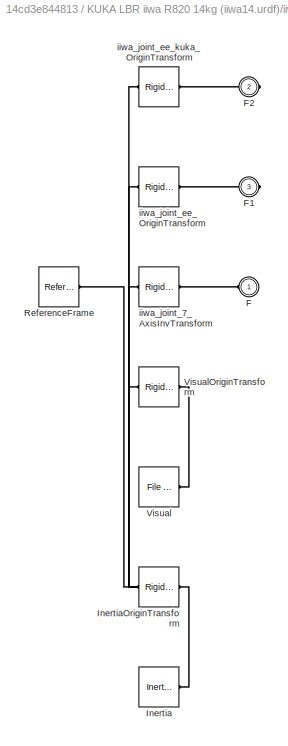
BLOCK [SubSystem] KUKA LBR iiwa R820 14kg (iiwa14.urdf)/iiwa_link_7
  Ports = [0, 0, 0, 0, 0, 1, 2]
  RequestExecContextInheritance = off
BLOCK [PMIOPort] KUKA LBR iiwa R820 14kg (iiwa14.urdf)/iiwa_link_7/F
  Side = Left
BLOCK [PMIOPort] KUKA LBR iiwa R820 14kg (iiwa14.urdf)/iiwa_link_7/F1
  Port = 3
  Side = Right
BLOCK [PMIOPort] KUKA LBR iiwa R820 14kg (iiwa14.urdf)/iiwa_link_7/F2
  Port = 2
  Side = Right
BLOCK [Reference] KUKA LBR iiwa R820 14kg (iiwa14.urdf)/iiwa_link_7/Inertia  REF=sm_lib/Body Elements/Inertia
  Ports = [0, 0, 0, 0, 0, 0, 1]
  SourceBlock = sm_lib/Body Elements/Inertia
  SourceProductBaseCode = MS
  SourceType = Inertia
BLOCK [Reference] KUKA LBR iiwa R820 14kg (iiwa14.urdf)/iiwa_link_7/InertiaOriginTransform  REF=sm_lib/Frames and
Transforms/Rigid
Transform
  Ports = [0, 0, 0, 0, 0, 1, 1]
  SourceBlock = sm_lib/Frames and\nTransforms/Rigid\nTransform
  SourceProductBaseCode = MS
  SourceType = Rigid\nTransform
BLOCK [Reference] KUKA LBR iiwa R820 14kg (iiwa14.urdf)/iiwa_link_7/ReferenceFrame  REF=sm_lib/Frames and
Transforms/Reference
Frame
  Ports = [0, 0, 0, 0, 0, 0, 1]
  SourceBlock = sm_lib/Frames and\nTransforms/Reference\nFrame
  SourceProductBaseCode = MS
  SourceType = Reference\nFrame
BLOCK [Reference] KUKA LBR iiwa R820 14kg (iiwa14.urdf)/iiwa_link_7/Visual  REF=sm_lib/Body Elements/File Solid
  Ports = [0, 0, 0, 0, 0, 0, 1]
  SourceBlock = sm_lib/Body Elements/File Solid
  SourceProductBaseCode = MS
  SourceType = File Solid
BLOCK [Reference] KUKA LBR iiwa R820 14kg (iiwa14.urdf)/iiwa_link_7/VisualOriginTransform  REF=sm_lib/Frames and
Transforms/Rigid
Transform
  Ports = [0, 0, 0, 0, 0, 1, 1]
  SourceBlock = sm_lib/Frames and\nTransforms/Rigid\nTransform
  SourceProductBaseCode = MS
  SourceType = Rigid\nTransform
BLOCK [Reference] KUKA LBR iiwa R820 14kg (iiwa14.urdf)/iiwa_link_7/iiwa_joint_7_AxisInvTransform  REF=sm_lib/Frames and
Transforms/Rigid
Transform
  Ports = [0, 0, 0, 0, 0, 1, 1]
  SourceBlock = sm_lib/Frames and\nTransforms/Rigid\nTransform
  SourceProductBaseCode = MS
  SourceType = Rigid\nTransform
BLOCK [Reference] KUKA LBR iiwa R820 14kg (iiwa14.urdf)/iiwa_link_7/iiwa_joint_ee_OriginTransform  REF=sm_lib/Frames and
Transforms/Rigid
Transform
  Ports = [0, 0, 0, 0, 0, 1, 1]
  SourceBlock = sm_lib/Frames and\nTransforms/Rigid\nTransform
  SourceProductBaseCode = MS
  SourceType = Rigid\nTransform
BLOCK [Reference] KUKA LBR iiwa R820 14kg (iiwa14.urdf)/iiwa_link_7/iiwa_joint_ee_kuka_OriginTransform  REF=sm_lib/Frames and
Transforms/Rigid
Transform
  Ports = [0, 0, 0, 0, 0, 1, 1]
  SourceBlock = sm_lib/Frames and\nTransforms/Rigid\nTransform
  SourceProductBaseCode = MS
  SourceType = Rigid\nTransform
BLOCK [SubSystem] KUKA LBR iiwa R820 14kg (iiwa14.urdf)/iiwa_link_ee
  Ports = [0, 0, 0, 0, 0, 1]
  RequestExecContextInheritance = off
BLOCK [PMIOPort] KUKA LBR iiwa R820 14kg (iiwa14.urdf)/iiwa_link_ee/F
  Side = Left
BLOCK [Reference] KUKA LBR iiwa R820 14kg (iiwa14.urdf)/iiwa_link_ee/ReferenceFrame  REF=sm_lib/Frames and
Transforms/Reference
Frame
  Ports = [0, 0, 0, 0, 0, 0, 1]
  SourceBlock = sm_lib/Frames and\nTransforms/Reference\nFrame
  SourceProductBaseCode = MS
  SourceType = Reference\nFrame
BLOCK [SubSystem] KUKA LBR iiwa R820 14kg (iiwa14.urdf)/iiwa_link_ee_kuka
  Ports = [0, 0, 0, 0, 0, 1]
  RequestExecContextInheritance = off
BLOCK [PMIOPort] KUKA LBR iiwa R820 14kg (iiwa14.urdf)/iiwa_link_ee_kuka/F
  Side = Left
BLOCK [Reference] KUKA LBR iiwa R820 14kg (iiwa14.urdf)/iiwa_link_ee_kuka/ReferenceFrame  REF=sm_lib/Frames and
Transforms/Reference
Frame
  Ports = [0, 0, 0, 0, 0, 0, 1]
  SourceBlock = sm_lib/Frames and\nTransforms/Reference\nFrame
  SourceProductBaseCode = MS
  SourceType = Reference\nFrame
BLOCK [Outport] KUKA LBR iiwa R820 14kg (iiwa14.urdf)/q
  VectorParamsAs1DForOutWhenUnconnected = off
BLOCK [Outport] KUKA LBR iiwa R820 14kg (iiwa14.urdf)/torque
  Port = 3
  VectorParamsAs1DForOutWhenUnconnected = off
BLOCK [Inport] KUKA LBR iiwa R820 14kg (iiwa14.urdf)/u
BLOCK [SubSystem] KUKA LBR iiwa R820 14kg (iiwa14.urdf)/world
  Ports = [0, 0, 0, 0, 0, 1, 1]
  RequestExecContextInheritance = off
BLOCK [PMIOPort] KUKA LBR iiwa R820 14kg (iiwa14.urdf)/world/F
  Side = Left
BLOCK [PMIOPort] KUKA LBR iiwa R820 14kg (iiwa14.urdf)/world/F1
  Port = 2
  Side = Right
BLOCK [Reference] KUKA LBR iiwa R820 14kg (iiwa14.urdf)/world/ReferenceFrame  REF=sm_lib/Frames and
Transforms/Reference
Frame
  Ports = [0, 0, 0, 0, 0, 0, 1]
  SourceBlock = sm_lib/Frames and\nTransforms/Reference\nFrame
  SourceProductBaseCode = MS
  SourceType = Reference\nFrame
BLOCK [Reference] KUKA LBR iiwa R820 14kg (iiwa14.urdf)/world/world_iiwa_joint_OriginTransform  REF=sm_lib/Frames and
Transforms/Rigid
Transform
  Ports = [0, 0, 0, 0, 0, 1, 1]
  SourceBlock = sm_lib/Frames and\nTransforms/Rigid\nTransform
  SourceProductBaseCode = MS
  SourceType = Rigid\nTransform
BLOCK [Reference] KUKA LBR iiwa R820 14kg (iiwa14.urdf)/world_iiwa_joint  REF=sm_lib/Joints/Weld Joint
  Ports = [0, 0, 0, 0, 0, 1, 1]
  SourceBlock = sm_lib/Joints/Weld Joint
  SourceProductBaseCode = MS
  SourceType = Weld Joint
BLOCK [RateLimiter] Rate Limiter
  FallingSlewLimit = -10
  RisingSlewLimit = 10
  SampleTimeMode = inherited
BLOCK [SubSystem] Subsystem
  Ports = [2, 1]
  RequestExecContextInheritance = off
BLOCK [FromWorkspace] Subsystem/From Workspace
  OutputAfterFinalValue = Holding final value
  VariableName = feedback_gain_K_t
BLOCK [FromWorkspace] Subsystem/From Workspace1
  OutputAfterFinalValue = Holding final value
  VariableName = feed_forward_gain_k_t
BLOCK [FromWorkspace] Subsystem/From Workspace2
  OutputAfterFinalValue = Holding final value
  VariableName = epsilon_u
BLOCK [Product] Subsystem/Matrix Multiply
  Multiplication = Matrix(*)
  Ports = [2, 1]
BLOCK [SubSystem] Subsystem/Subsystem
  Ports = [2, 1]
  RequestExecContextInheritance = off
BLOCK [Demux] Subsystem/Subsystem/Demux
  Outputs = 7
  Ports = [1, 7]
BLOCK [Demux] Subsystem/Subsystem/Demux1
  Outputs = 7
  Ports = [1, 7]
BLOCK [Mux] Subsystem/Subsystem/Mux
  DisplayOption = bar
  Inputs = 14
  Ports = [14, 1]
BLOCK [Inport] Subsystem/Subsystem/dq
  Port = 2
BLOCK [Inport] Subsystem/Subsystem/q
BLOCK [Outport] Subsystem/Subsystem/y
BLOCK [Sum] Subsystem/Sum
  Inputs = |+++
  Ports = [3, 1]
BLOCK [Inport] Subsystem/dq
  Port = 2
BLOCK [Inport] Subsystem/q
BLOCK [Outport] Subsystem/u (a_q)
BLOCK [SubSystem] Subsystem1
  Ports = [2, 1]
  RequestExecContextInheritance = off
BLOCK [Inport] Subsystem1/<q>
BLOCK [Product] Subsystem1/Divide
  Inputs = **
  Multiplication = Matrix(*)
  Ports = [2, 1]
BLOCK [Reference] Subsystem1/Get Jacobian  REF=robotmaniplib/Get Jacobian
  Ports = [1, 1]
  SourceBlock = robotmaniplib/Get Jacobian
  SourceProductBaseCode = RO
  SourceType = Get Jacobian
BLOCK [Outport] Subsystem1/J^Th_e
BLOCK [Math] Subsystem1/Math Function
  Operator = transpose
  Ports = [1, 1]
BLOCK [Inport] Subsystem1/h_e
  Port = 2
BLOCK [Sum] Sum
  Inputs = |+++
  Ports = [3, 1]
BLOCK [SubSystem] h_e
  Ports = [0, 1]
  RequestExecContextInheritance = off
BLOCK [Gain] h_e/Gain
  Gain = 0
BLOCK [Gain] h_e/Gain1
  Gain = 0
BLOCK [Gain] h_e/Gain2
  Gain = 0
BLOCK [Gain] h_e/Gain3
  Gain = 0
BLOCK [Gain] h_e/Gain4
  Gain = 0
BLOCK [Gain] h_e/Gain5
  Gain = 0
BLOCK [Constant] h_e/Max
  Value = 5
BLOCK [Mux] h_e/Mux
  DisplayOption = bar
  Inputs = 6
  Ports = [6, 1]
BLOCK [Reference] h_e/Slider Gain  REF=simulink/Math
Operations/Slider
Gain
  Ports = [1, 1]
  SourceBlock = simulink/Math\nOperations/Slider\nGain
  SourceProductBaseCode = SL
  SourceType = Slider Gain
BLOCK [Outport] h_e/h_e
BLOCK [SubSystem] tau_b
  Ports = [0, 1]
  RequestExecContextInheritance = off
BLOCK [Gain] tau_b/Gain
  Gain = 0
BLOCK [Gain] tau_b/Gain1
  Gain = 0
BLOCK [Gain] tau_b/Gain2
  Gain = 0
BLOCK [Gain] tau_b/Gain3
  Gain = 0
BLOCK [Gain] tau_b/Gain4
  Gain = 0
BLOCK [Gain] tau_b/Gain5
  Gain = 0
BLOCK [Gain] tau_b/Gain6
  Gain = 0
BLOCK [Constant] tau_b/Max Nm
  Value = 30
BLOCK [Mux] tau_b/Mux
  DisplayOption = bar
  Inputs = 7
  Ports = [7, 1]
BLOCK [Reference] tau_b/Slider Gain  REF=simulink/Math
Operations/Slider
Gain
  Ports = [1, 1]
  SourceBlock = simulink/Math\nOperations/Slider\nGain
  SourceProductBaseCode = SL
  SourceType = Slider Gain
BLOCK [Outport] tau_b/tau_b
ANNOTATION KUKA LBR iiwa R820 14kg (iiwa14.urdf): Simscape Model with Simple Contact Mechanics
ANNOTATION KUKA LBR iiwa R820 14kg (iiwa14.urdf): Sensor Feedback
ANNOTATION KUKA LBR iiwa R820 14kg (iiwa14.urdf): Torque Input
NET Bus Creator:1 -> Bus Selector1:1, Bus Selector:1
NET Bus Selector1:1 -> Inverse Dynamics:1, Subsystem1:1
LINE Bus Selector1:2 -> Inverse Dynamics:2
LINE Bus Selector:1 -> Subsystem:1
LINE Bus Selector:2 -> Subsystem:2
LINE Constant1:1 -> Inverse Dynamics:4
LINE Inverse Dynamics:1 -> Sum:1
LINE KUKA LBR iiwa R820 14kg (iiwa14.urdf)/Demux:1 -> KUKA LBR iiwa R820 14kg (iiwa14.urdf)/Simulink-PS Converter:1
LINE KUKA LBR iiwa R820 14kg (iiwa14.urdf)/Demux:2 -> KUKA LBR iiwa R820 14kg (iiwa14.urdf)/Simulink-PS Converter1:1
LINE KUKA LBR iiwa R820 14kg (iiwa14.urdf)/Demux:3 -> KUKA LBR iiwa R820 14kg (iiwa14.urdf)/Simulink-PS Converter2:1
LINE KUKA LBR iiwa R820 14kg (iiwa14.urdf)/Demux:4 -> KUKA LBR iiwa R820 14kg (iiwa14.urdf)/Simulink-PS Converter3:1
LINE KUKA LBR iiwa R820 14kg (iiwa14.urdf)/Demux:5 -> KUKA LBR iiwa R820 14kg (iiwa14.urdf)/Simulink-PS Converter4:1
LINE KUKA LBR iiwa R820 14kg (iiwa14.urdf)/Demux:6 -> KUKA LBR iiwa R820 14kg (iiwa14.urdf)/Simulink-PS Converter5:1
LINE KUKA LBR iiwa R820 14kg (iiwa14.urdf)/Demux:7 -> KUKA LBR iiwa R820 14kg (iiwa14.urdf)/Simulink-PS Converter6:1
LINE KUKA LBR iiwa R820 14kg (iiwa14.urdf)/Mux1:1 -> KUKA LBR iiwa R820 14kg (iiwa14.urdf)/dq:1
LINE KUKA LBR iiwa R820 14kg (iiwa14.urdf)/Mux3:1 -> KUKA LBR iiwa R820 14kg (iiwa14.urdf)/torque:1
LINE KUKA LBR iiwa R820 14kg (iiwa14.urdf)/Mux:1 -> KUKA LBR iiwa R820 14kg (iiwa14.urdf)/q:1
LINE KUKA LBR iiwa R820 14kg (iiwa14.urdf)/PS-Simulink Converter10:1 -> KUKA LBR iiwa R820 14kg (iiwa14.urdf)/Mux1:4
LINE KUKA LBR iiwa R820 14kg (iiwa14.urdf)/PS-Simulink Converter11:1 -> KUKA LBR iiwa R820 14kg (iiwa14.urdf)/Mux1:5
LINE KUKA LBR iiwa R820 14kg (iiwa14.urdf)/PS-Simulink Converter12:1 -> KUKA LBR iiwa R820 14kg (iiwa14.urdf)/Mux1:6
LINE KUKA LBR iiwa R820 14kg (iiwa14.urdf)/PS-Simulink Converter13:1 -> KUKA LBR iiwa R820 14kg (iiwa14.urdf)/Mux1:7
LINE KUKA LBR iiwa R820 14kg (iiwa14.urdf)/PS-Simulink Converter1:1 -> KUKA LBR iiwa R820 14kg (iiwa14.urdf)/Mux:2
LINE KUKA LBR iiwa R820 14kg (iiwa14.urdf)/PS-Simulink Converter21:1 -> KUKA LBR iiwa R820 14kg (iiwa14.urdf)/Mux3:4
LINE KUKA LBR iiwa R820 14kg (iiwa14.urdf)/PS-Simulink Converter22:1 -> KUKA LBR iiwa R820 14kg (iiwa14.urdf)/Mux3:5
LINE KUKA LBR iiwa R820 14kg (iiwa14.urdf)/PS-Simulink Converter23:1 -> KUKA LBR iiwa R820 14kg (iiwa14.urdf)/Mux3:6
LINE KUKA LBR iiwa R820 14kg (iiwa14.urdf)/PS-Simulink Converter24:1 -> KUKA LBR iiwa R820 14kg (iiwa14.urdf)/Mux3:7
LINE KUKA LBR iiwa R820 14kg (iiwa14.urdf)/PS-Simulink Converter25:1 -> KUKA LBR iiwa R820 14kg (iiwa14.urdf)/Mux3:1
LINE KUKA LBR iiwa R820 14kg (iiwa14.urdf)/PS-Simulink Converter26:1 -> KUKA LBR iiwa R820 14kg (iiwa14.urdf)/Mux3:2
LINE KUKA LBR iiwa R820 14kg (iiwa14.urdf)/PS-Simulink Converter27:1 -> KUKA LBR iiwa R820 14kg (iiwa14.urdf)/Mux3:3
LINE KUKA LBR iiwa R820 14kg (iiwa14.urdf)/PS-Simulink Converter2:1 -> KUKA LBR iiwa R820 14kg (iiwa14.urdf)/Mux:3
LINE KUKA LBR iiwa R820 14kg (iiwa14.urdf)/PS-Simulink Converter3:1 -> KUKA LBR iiwa R820 14kg (iiwa14.urdf)/Mux:4
LINE KUKA LBR iiwa R820 14kg (iiwa14.urdf)/PS-Simulink Converter4:1 -> KUKA LBR iiwa R820 14kg (iiwa14.urdf)/Mux:5
LINE KUKA LBR iiwa R820 14kg (iiwa14.urdf)/PS-Simulink Converter5:1 -> KUKA LBR iiwa R820 14kg (iiwa14.urdf)/Mux:6
LINE KUKA LBR iiwa R820 14kg (iiwa14.urdf)/PS-Simulink Converter6:1 -> KUKA LBR iiwa R820 14kg (iiwa14.urdf)/Mux:7
LINE KUKA LBR iiwa R820 14kg (iiwa14.urdf)/PS-Simulink Converter7:1 -> KUKA LBR iiwa R820 14kg (iiwa14.urdf)/Mux1:1
LINE KUKA LBR iiwa R820 14kg (iiwa14.urdf)/PS-Simulink Converter8:1 -> KUKA LBR iiwa R820 14kg (iiwa14.urdf)/Mux1:2
LINE KUKA LBR iiwa R820 14kg (iiwa14.urdf)/PS-Simulink Converter9:1 -> KUKA LBR iiwa R820 14kg (iiwa14.urdf)/Mux1:3
LINE KUKA LBR iiwa R820 14kg (iiwa14.urdf)/PS-Simulink Converter:1 -> KUKA LBR iiwa R820 14kg (iiwa14.urdf)/Mux:1
LINE KUKA LBR iiwa R820 14kg (iiwa14.urdf)/u:1 -> KUKA LBR iiwa R820 14kg (iiwa14.urdf)/Demux:1
LINE KUKA LBR iiwa R820 14kg (iiwa14.urdf):1 -> Bus Creator:1
LINE KUKA LBR iiwa R820 14kg (iiwa14.urdf):2 -> Bus Creator:2
LINE KUKA LBR iiwa R820 14kg (iiwa14.urdf):3 -> Bus Creator:3
LINE Rate Limiter:1 -> KUKA LBR iiwa R820 14kg (iiwa14.urdf):1
LINE Subsystem/From Workspace1:1 -> Subsystem/Sum:2
LINE Subsystem/From Workspace2:1 -> Subsystem/Sum:3
LINE Subsystem/From Workspace:1 -> Subsystem/Matrix Multiply:1
LINE Subsystem/Matrix Multiply:1 -> Subsystem/Sum:1
LINE Subsystem/Subsystem/Demux1:1 -> Subsystem/Subsystem/Mux:2
LINE Subsystem/Subsystem/Demux1:2 -> Subsystem/Subsystem/Mux:4
LINE Subsystem/Subsystem/Demux1:3 -> Subsystem/Subsystem/Mux:6
LINE Subsystem/Subsystem/Demux1:4 -> Subsystem/Subsystem/Mux:8
LINE Subsystem/Subsystem/Demux1:5 -> Subsystem/Subsystem/Mux:10
LINE Subsystem/Subsystem/Demux1:6 -> Subsystem/Subsystem/Mux:12
LINE Subsystem/Subsystem/Demux1:7 -> Subsystem/Subsystem/Mux:14
LINE Subsystem/Subsystem/Demux:1 -> Subsystem/Subsystem/Mux:1
LINE Subsystem/Subsystem/Demux:2 -> Subsystem/Subsystem/Mux:3
LINE Subsystem/Subsystem/Demux:3 -> Subsystem/Subsystem/Mux:5
LINE Subsystem/Subsystem/Demux:4 -> Subsystem/Subsystem/Mux:7
LINE Subsystem/Subsystem/Demux:5 -> Subsystem/Subsystem/Mux:9
LINE Subsystem/Subsystem/Demux:6 -> Subsystem/Subsystem/Mux:11
LINE Subsystem/Subsystem/Demux:7 -> Subsystem/Subsystem/Mux:13
LINE Subsystem/Subsystem/Mux:1 -> Subsystem/Subsystem/y:1
LINE Subsystem/Subsystem/dq:1 -> Subsystem/Subsystem/Demux1:1
LINE Subsystem/Subsystem/q:1 -> Subsystem/Subsystem/Demux:1
LINE Subsystem/Subsystem:1 -> Subsystem/Matrix Multiply:2
LINE Subsystem/Sum:1 -> Subsystem/u (a_q):1
LINE Subsystem/dq:1 -> Subsystem/Subsystem:2
LINE Subsystem/q:1 -> Subsystem/Subsystem:1
LINE Subsystem1/<q>:1 -> Subsystem1/Get Jacobian:1
LINE Subsystem1/Divide:1 -> Subsystem1/J^Th_e:1
LINE Subsystem1/Get Jacobian:1 -> Subsystem1/Math Function:1
LINE Subsystem1/Math Function:1 -> Subsystem1/Divide:1
LINE Subsystem1/h_e:1 -> Subsystem1/Divide:2
LINE Subsystem1:1 -> Sum:2
LINE Subsystem:1 -> Inverse Dynamics:3
LINE Sum:1 -> Rate Limiter:1
LINE h_e/Gain1:1 -> h_e/Mux:2
LINE h_e/Gain2:1 -> h_e/Mux:3
LINE h_e/Gain3:1 -> h_e/Mux:4
LINE h_e/Gain4:1 -> h_e/Mux:5
LINE h_e/Gain5:1 -> h_e/Mux:6
LINE h_e/Gain:1 -> h_e/Mux:1
LINE h_e/Max:1 -> h_e/Slider Gain:1
LINE h_e/Mux:1 -> h_e/h_e:1
NET h_e/Slider Gain:1 -> h_e/Gain1:1, h_e/Gain2:1, h_e/Gain3:1, h_e/Gain4:1, h_e/Gain5:1, h_e/Gain:1
LINE h_e:1 -> Subsystem1:2
LINE tau_b/Gain1:1 -> tau_b/Mux:2
LINE tau_b/Gain2:1 -> tau_b/Mux:3
LINE tau_b/Gain3:1 -> tau_b/Mux:4
LINE tau_b/Gain4:1 -> tau_b/Mux:5
LINE tau_b/Gain5:1 -> tau_b/Mux:6
LINE tau_b/Gain6:1 -> tau_b/Mux:7
LINE tau_b/Gain:1 -> tau_b/Mux:1
LINE tau_b/Max Nm:1 -> tau_b/Slider Gain:1
LINE tau_b/Mux:1 -> tau_b/tau_b:1
NET tau_b/Slider Gain:1 -> tau_b/Gain1:1, tau_b/Gain2:1, tau_b/Gain3:1, tau_b/Gain4:1, tau_b/Gain5:1, tau_b/Gain6:1, tau_b/Gain:1
LINE tau_b:1 -> Sum:3
PNET net1: KUKA LBR iiwa R820 14kg (iiwa14.urdf)/MechanismConfiguration:RConn1 -- KUKA LBR iiwa R820 14kg (iiwa14.urdf)/Solver Configuration:RConn1 -- KUKA LBR iiwa R820 14kg (iiwa14.urdf)/World:RConn1 -- KUKA LBR iiwa R820 14kg (iiwa14.urdf)/world:LConn1
PLINE KUKA LBR iiwa R820 14kg (iiwa14.urdf)/PS-Simulink Converter10:LConn1 -- KUKA LBR iiwa R820 14kg (iiwa14.urdf)/iiwa_joint_4:RConn3
PLINE KUKA LBR iiwa R820 14kg (iiwa14.urdf)/PS-Simulink Converter11:LConn1 -- KUKA LBR iiwa R820 14kg (iiwa14.urdf)/iiwa_joint_5:RConn3
PLINE KUKA LBR iiwa R820 14kg (iiwa14.urdf)/PS-Simulink Converter12:LConn1 -- KUKA LBR iiwa R820 14kg (iiwa14.urdf)/iiwa_joint_6:RConn3
PLINE KUKA LBR iiwa R820 14kg (iiwa14.urdf)/PS-Simulink Converter13:LConn1 -- KUKA LBR iiwa R820 14kg (iiwa14.urdf)/iiwa_joint_7:RConn3
PLINE KUKA LBR iiwa R820 14kg (iiwa14.urdf)/PS-Simulink Converter1:LConn1 -- KUKA LBR iiwa R820 14kg (iiwa14.urdf)/iiwa_joint_2:RConn2
PLINE KUKA LBR iiwa R820 14kg (iiwa14.urdf)/PS-Simulink Converter21:LConn1 -- KUKA LBR iiwa R820 14kg (iiwa14.urdf)/iiwa_joint_4:RConn4
PLINE KUKA LBR iiwa R820 14kg (iiwa14.urdf)/PS-Simulink Converter22:LConn1 -- KUKA LBR iiwa R820 14kg (iiwa14.urdf)/iiwa_joint_5:RConn4
PLINE KUKA LBR iiwa R820 14kg (iiwa14.urdf)/PS-Simulink Converter23:LConn1 -- KUKA LBR iiwa R820 14kg (iiwa14.urdf)/iiwa_joint_6:RConn4
PLINE KUKA LBR iiwa R820 14kg (iiwa14.urdf)/PS-Simulink Converter24:LConn1 -- KUKA LBR iiwa R820 14kg (iiwa14.urdf)/iiwa_joint_7:RConn4
PLINE KUKA LBR iiwa R820 14kg (iiwa14.urdf)/PS-Simulink Converter25:LConn1 -- KUKA LBR iiwa R820 14kg (iiwa14.urdf)/iiwa_joint_1:RConn4
PLINE KUKA LBR iiwa R820 14kg (iiwa14.urdf)/PS-Simulink Converter26:LConn1 -- KUKA LBR iiwa R820 14kg (iiwa14.urdf)/iiwa_joint_2:RConn4
PLINE KUKA LBR iiwa R820 14kg (iiwa14.urdf)/PS-Simulink Converter27:LConn1 -- KUKA LBR iiwa R820 14kg (iiwa14.urdf)/iiwa_joint_3:RConn4
PLINE KUKA LBR iiwa R820 14kg (iiwa14.urdf)/PS-Simulink Converter2:LConn1 -- KUKA LBR iiwa R820 14kg (iiwa14.urdf)/iiwa_joint_3:RConn2
PLINE KUKA LBR iiwa R820 14kg (iiwa14.urdf)/PS-Simulink Converter3:LConn1 -- KUKA LBR iiwa R820 14kg (iiwa14.urdf)/iiwa_joint_4:RConn2
PLINE KUKA LBR iiwa R820 14kg (iiwa14.urdf)/PS-Simulink Converter4:LConn1 -- KUKA LBR iiwa R820 14kg (iiwa14.urdf)/iiwa_joint_5:RConn2
PLINE KUKA LBR iiwa R820 14kg (iiwa14.urdf)/PS-Simulink Converter5:LConn1 -- KUKA LBR iiwa R820 14kg (iiwa14.urdf)/iiwa_joint_6:RConn2
PLINE KUKA LBR iiwa R820 14kg (iiwa14.urdf)/PS-Simulink Converter6:LConn1 -- KUKA LBR iiwa R820 14kg (iiwa14.urdf)/iiwa_joint_7:RConn2
PLINE KUKA LBR iiwa R820 14kg (iiwa14.urdf)/PS-Simulink Converter7:LConn1 -- KUKA LBR iiwa R820 14kg (iiwa14.urdf)/iiwa_joint_1:RConn3
PLINE KUKA LBR iiwa R820 14kg (iiwa14.urdf)/PS-Simulink Converter8:LConn1 -- KUKA LBR iiwa R820 14kg (iiwa14.urdf)/iiwa_joint_2:RConn3
PLINE KUKA LBR iiwa R820 14kg (iiwa14.urdf)/PS-Simulink Converter9:LConn1 -- KUKA LBR iiwa R820 14kg (iiwa14.urdf)/iiwa_joint_3:RConn3
PLINE KUKA LBR iiwa R820 14kg (iiwa14.urdf)/PS-Simulink Converter:LConn1 -- KUKA LBR iiwa R820 14kg (iiwa14.urdf)/iiwa_joint_1:RConn2
PLINE KUKA LBR iiwa R820 14kg (iiwa14.urdf)/Simulink-PS Converter1:RConn1 -- KUKA LBR iiwa R820 14kg (iiwa14.urdf)/iiwa_joint_2:LConn2
PLINE KUKA LBR iiwa R820 14kg (iiwa14.urdf)/Simulink-PS Converter2:RConn1 -- KUKA LBR iiwa R820 14kg (iiwa14.urdf)/iiwa_joint_3:LConn2
PLINE KUKA LBR iiwa R820 14kg (iiwa14.urdf)/Simulink-PS Converter3:RConn1 -- KUKA LBR iiwa R820 14kg (iiwa14.urdf)/iiwa_joint_4:LConn2
PLINE KUKA LBR iiwa R820 14kg (iiwa14.urdf)/Simulink-PS Converter4:RConn1 -- KUKA LBR iiwa R820 14kg (iiwa14.urdf)/iiwa_joint_5:LConn2
PLINE KUKA LBR iiwa R820 14kg (iiwa14.urdf)/Simulink-PS Converter5:RConn1 -- KUKA LBR iiwa R820 14kg (iiwa14.urdf)/iiwa_joint_6:LConn2
PLINE KUKA LBR iiwa R820 14kg (iiwa14.urdf)/Simulink-PS Converter6:RConn1 -- KUKA LBR iiwa R820 14kg (iiwa14.urdf)/iiwa_joint_7:LConn2
PLINE KUKA LBR iiwa R820 14kg (iiwa14.urdf)/Simulink-PS Converter:RConn1 -- KUKA LBR iiwa R820 14kg (iiwa14.urdf)/iiwa_joint_1:LConn2
PLINE KUKA LBR iiwa R820 14kg (iiwa14.urdf)/iiwa_joint_1:LConn1 -- KUKA LBR iiwa R820 14kg (iiwa14.urdf)/iiwa_link_0:RConn1
PLINE KUKA LBR iiwa R820 14kg (iiwa14.urdf)/iiwa_joint_1:RConn1 -- KUKA LBR iiwa R820 14kg (iiwa14.urdf)/iiwa_link_1:LConn1
PLINE KUKA LBR iiwa R820 14kg (iiwa14.urdf)/iiwa_joint_2:LConn1 -- KUKA LBR iiwa R820 14kg (iiwa14.urdf)/iiwa_link_1:RConn1
PLINE KUKA LBR iiwa R820 14kg (iiwa14.urdf)/iiwa_joint_2:RConn1 -- KUKA LBR iiwa R820 14kg (iiwa14.urdf)/iiwa_link_2:LConn1
PLINE KUKA LBR iiwa R820 14kg (iiwa14.urdf)/iiwa_joint_3:LConn1 -- KUKA LBR iiwa R820 14kg (iiwa14.urdf)/iiwa_link_2:RConn1
PLINE KUKA LBR iiwa R820 14kg (iiwa14.urdf)/iiwa_joint_3:RConn1 -- KUKA LBR iiwa R820 14kg (iiwa14.urdf)/iiwa_link_3:LConn1
PLINE KUKA LBR iiwa R820 14kg (iiwa14.urdf)/iiwa_joint_4:LConn1 -- KUKA LBR iiwa R820 14kg (iiwa14.urdf)/iiwa_link_3:RConn1
PLINE KUKA LBR iiwa R820 14kg (iiwa14.urdf)/iiwa_joint_4:RConn1 -- KUKA LBR iiwa R820 14kg (iiwa14.urdf)/iiwa_link_4:LConn1
PLINE KUKA LBR iiwa R820 14kg (iiwa14.urdf)/iiwa_joint_5:LConn1 -- KUKA LBR iiwa R820 14kg (iiwa14.urdf)/iiwa_link_4:RConn1
PLINE KUKA LBR iiwa R820 14kg (iiwa14.urdf)/iiwa_joint_5:RConn1 -- KUKA LBR iiwa R820 14kg (iiwa14.urdf)/iiwa_link_5:LConn1
PLINE KUKA LBR iiwa R820 14kg (iiwa14.urdf)/iiwa_joint_6:LConn1 -- KUKA LBR iiwa R820 14kg (iiwa14.urdf)/iiwa_link_5:RConn1
PLINE KUKA LBR iiwa R820 14kg (iiwa14.urdf)/iiwa_joint_6:RConn1 -- KUKA LBR iiwa R820 14kg (iiwa14.urdf)/iiwa_link_6:LConn1
PLINE KUKA LBR iiwa R820 14kg (iiwa14.urdf)/iiwa_joint_7:LConn1 -- KUKA LBR iiwa R820 14kg (iiwa14.urdf)/iiwa_link_6:RConn1
PLINE KUKA LBR iiwa R820 14kg (iiwa14.urdf)/iiwa_joint_7:RConn1 -- KUKA LBR iiwa R820 14kg (iiwa14.urdf)/iiwa_link_7:LConn1
PLINE KUKA LBR iiwa R820 14kg (iiwa14.urdf)/iiwa_joint_ee:LConn1 -- KUKA LBR iiwa R820 14kg (iiwa14.urdf)/iiwa_link_7:RConn2
PLINE KUKA LBR iiwa R820 14kg (iiwa14.urdf)/iiwa_joint_ee:RConn1 -- KUKA LBR iiwa R820 14kg (iiwa14.urdf)/iiwa_link_ee:LConn1
PLINE KUKA LBR iiwa R820 14kg (iiwa14.urdf)/iiwa_joint_ee_kuka:LConn1 -- KUKA LBR iiwa R820 14kg (iiwa14.urdf)/iiwa_link_7:RConn1
PLINE KUKA LBR iiwa R820 14kg (iiwa14.urdf)/iiwa_joint_ee_kuka:RConn1 -- KUKA LBR iiwa R820 14kg (iiwa14.urdf)/iiwa_link_ee_kuka:LConn1
PLINE KUKA LBR iiwa R820 14kg (iiwa14.urdf)/iiwa_link_0/F1:RConn1 -- KUKA LBR iiwa R820 14kg (iiwa14.urdf)/iiwa_link_0/iiwa_joint_1_AxisTransform:RConn1
PNET net2: KUKA LBR iiwa R820 14kg (iiwa14.urdf)/iiwa_link_0/F:RConn1 -- KUKA LBR iiwa R820 14kg (iiwa14.urdf)/iiwa_link_0/InertiaOriginTransform:LConn1 -- KUKA LBR iiwa R820 14kg (iiwa14.urdf)/iiwa_link_0/ReferenceFrame:RConn1 -- KUKA LBR iiwa R820 14kg (iiwa14.urdf)/iiwa_link_0/VisualOriginTransform:LConn1 -- KUKA LBR iiwa R820 14kg (iiwa14.urdf)/iiwa_link_0/iiwa_joint_1_OriginTransform:LConn1
PLINE KUKA LBR iiwa R820 14kg (iiwa14.urdf)/iiwa_link_0/Inertia:RConn1 -- KUKA LBR iiwa R820 14kg (iiwa14.urdf)/iiwa_link_0/InertiaOriginTransform:RConn1
PLINE KUKA LBR iiwa R820 14kg (iiwa14.urdf)/iiwa_link_0/Visual:RConn1 -- KUKA LBR iiwa R820 14kg (iiwa14.urdf)/iiwa_link_0/VisualOriginTransform:RConn1
PLINE KUKA LBR iiwa R820 14kg (iiwa14.urdf)/iiwa_link_0/iiwa_joint_1_AxisTransform:LConn1 -- KUKA LBR iiwa R820 14kg (iiwa14.urdf)/iiwa_link_0/iiwa_joint_1_OriginTransform:RConn1
PLINE KUKA LBR iiwa R820 14kg (iiwa14.urdf)/iiwa_link_0:LConn1 -- KUKA LBR iiwa R820 14kg (iiwa14.urdf)/world_iiwa_joint:RConn1
PLINE KUKA LBR iiwa R820 14kg (iiwa14.urdf)/iiwa_link_1/F1:RConn1 -- KUKA LBR iiwa R820 14kg (iiwa14.urdf)/iiwa_link_1/iiwa_joint_2_AxisTransform:RConn1
PLINE KUKA LBR iiwa R820 14kg (iiwa14.urdf)/iiwa_link_1/F:RConn1 -- KUKA LBR iiwa R820 14kg (iiwa14.urdf)/iiwa_link_1/iiwa_joint_1_AxisInvTransform:RConn1
PLINE KUKA LBR iiwa R820 14kg (iiwa14.urdf)/iiwa_link_1/Inertia:RConn1 -- KUKA LBR iiwa R820 14kg (iiwa14.urdf)/iiwa_link_1/InertiaOriginTransform:RConn1
PNET net3: KUKA LBR iiwa R820 14kg (iiwa14.urdf)/iiwa_link_1/InertiaOriginTransform:LConn1 -- KUKA LBR iiwa R820 14kg (iiwa14.urdf)/iiwa_link_1/ReferenceFrame:RConn1 -- KUKA LBR iiwa R820 14kg (iiwa14.urdf)/iiwa_link_1/VisualOriginTransform:LConn1 -- KUKA LBR iiwa R820 14kg (iiwa14.urdf)/iiwa_link_1/iiwa_joint_1_AxisInvTransform:LConn1 -- KUKA LBR iiwa R820 14kg (iiwa14.urdf)/iiwa_link_1/iiwa_joint_2_OriginTransform:LConn1
PLINE KUKA LBR iiwa R820 14kg (iiwa14.urdf)/iiwa_link_1/Visual:RConn1 -- KUKA LBR iiwa R820 14kg (iiwa14.urdf)/iiwa_link_1/VisualOriginTransform:RConn1
PLINE KUKA LBR iiwa R820 14kg (iiwa14.urdf)/iiwa_link_1/iiwa_joint_2_AxisTransform:LConn1 -- KUKA LBR iiwa R820 14kg (iiwa14.urdf)/iiwa_link_1/iiwa_joint_2_OriginTransform:RConn1
PLINE KUKA LBR iiwa R820 14kg (iiwa14.urdf)/iiwa_link_2/F1:RConn1 -- KUKA LBR iiwa R820 14kg (iiwa14.urdf)/iiwa_link_2/iiwa_joint_3_AxisTransform:RConn1
PLINE KUKA LBR iiwa R820 14kg (iiwa14.urdf)/iiwa_link_2/F:RConn1 -- KUKA LBR iiwa R820 14kg (iiwa14.urdf)/iiwa_link_2/iiwa_joint_2_AxisInvTransform:RConn1
PLINE KUKA LBR iiwa R820 14kg (iiwa14.urdf)/iiwa_link_2/Inertia:RConn1 -- KUKA LBR iiwa R820 14kg (iiwa14.urdf)/iiwa_link_2/InertiaOriginTransform:RConn1
PNET net4: KUKA LBR iiwa R820 14kg (iiwa14.urdf)/iiwa_link_2/InertiaOriginTransform:LConn1 -- KUKA LBR iiwa R820 14kg (iiwa14.urdf)/iiwa_link_2/ReferenceFrame:RConn1 -- KUKA LBR iiwa R820 14kg (iiwa14.urdf)/iiwa_link_2/VisualOriginTransform:LConn1 -- KUKA LBR iiwa R820 14kg (iiwa14.urdf)/iiwa_link_2/iiwa_joint_2_AxisInvTransform:LConn1 -- KUKA LBR iiwa R820 14kg (iiwa14.urdf)/iiwa_link_2/iiwa_joint_3_OriginTransform:LConn1
PLINE KUKA LBR iiwa R820 14kg (iiwa14.urdf)/iiwa_link_2/Visual:RConn1 -- KUKA LBR iiwa R820 14kg (iiwa14.urdf)/iiwa_link_2/VisualOriginTransform:RConn1
PLINE KUKA LBR iiwa R820 14kg (iiwa14.urdf)/iiwa_link_2/iiwa_joint_3_AxisTransform:LConn1 -- KUKA LBR iiwa R820 14kg (iiwa14.urdf)/iiwa_link_2/iiwa_joint_3_OriginTransform:RConn1
PLINE KUKA LBR iiwa R820 14kg (iiwa14.urdf)/iiwa_link_3/F1:RConn1 -- KUKA LBR iiwa R820 14kg (iiwa14.urdf)/iiwa_link_3/iiwa_joint_4_AxisTransform:RConn1
PLINE KUKA LBR iiwa R820 14kg (iiwa14.urdf)/iiwa_link_3/F:RConn1 -- KUKA LBR iiwa R820 14kg (iiwa14.urdf)/iiwa_link_3/iiwa_joint_3_AxisInvTransform:RConn1
PLINE KUKA LBR iiwa R820 14kg (iiwa14.urdf)/iiwa_link_3/Inertia:RConn1 -- KUKA LBR iiwa R820 14kg (iiwa14.urdf)/iiwa_link_3/InertiaOriginTransform:RConn1
PNET net5: KUKA LBR iiwa R820 14kg (iiwa14.urdf)/iiwa_link_3/InertiaOriginTransform:LConn1 -- KUKA LBR iiwa R820 14kg (iiwa14.urdf)/iiwa_link_3/ReferenceFrame:RConn1 -- KUKA LBR iiwa R820 14kg (iiwa14.urdf)/iiwa_link_3/VisualOriginTransform:LConn1 -- KUKA LBR iiwa R820 14kg (iiwa14.urdf)/iiwa_link_3/iiwa_joint_3_AxisInvTransform:LConn1 -- KUKA LBR iiwa R820 14kg (iiwa14.urdf)/iiwa_link_3/iiwa_joint_4_OriginTransform:LConn1
PLINE KUKA LBR iiwa R820 14kg (iiwa14.urdf)/iiwa_link_3/Visual:RConn1 -- KUKA LBR iiwa R820 14kg (iiwa14.urdf)/iiwa_link_3/VisualOriginTransform:RConn1
PLINE KUKA LBR iiwa R820 14kg (iiwa14.urdf)/iiwa_link_3/iiwa_joint_4_AxisTransform:LConn1 -- KUKA LBR iiwa R820 14kg (iiwa14.urdf)/iiwa_link_3/iiwa_joint_4_OriginTransform:RConn1
PLINE KUKA LBR iiwa R820 14kg (iiwa14.urdf)/iiwa_link_4/F1:RConn1 -- KUKA LBR iiwa R820 14kg (iiwa14.urdf)/iiwa_link_4/iiwa_joint_5_AxisTransform:RConn1
PLINE KUKA LBR iiwa R820 14kg (iiwa14.urdf)/iiwa_link_4/F:RConn1 -- KUKA LBR iiwa R820 14kg (iiwa14.urdf)/iiwa_link_4/iiwa_joint_4_AxisInvTransform:RConn1
PLINE KUKA LBR iiwa R820 14kg (iiwa14.urdf)/iiwa_link_4/Inertia:RConn1 -- KUKA LBR iiwa R820 14kg (iiwa14.urdf)/iiwa_link_4/InertiaOriginTransform:RConn1
PNET net6: KUKA LBR iiwa R820 14kg (iiwa14.urdf)/iiwa_link_4/InertiaOriginTransform:LConn1 -- KUKA LBR iiwa R820 14kg (iiwa14.urdf)/iiwa_link_4/ReferenceFrame:RConn1 -- KUKA LBR iiwa R820 14kg (iiwa14.urdf)/iiwa_link_4/VisualOriginTransform:LConn1 -- KUKA LBR iiwa R820 14kg (iiwa14.urdf)/iiwa_link_4/iiwa_joint_4_AxisInvTransform:LConn1 -- KUKA LBR iiwa R820 14kg (iiwa14.urdf)/iiwa_link_4/iiwa_joint_5_OriginTransform:LConn1
PLINE KUKA LBR iiwa R820 14kg (iiwa14.urdf)/iiwa_link_4/Visual:RConn1 -- KUKA LBR iiwa R820 14kg (iiwa14.urdf)/iiwa_link_4/VisualOriginTransform:RConn1
PLINE KUKA LBR iiwa R820 14kg (iiwa14.urdf)/iiwa_link_4/iiwa_joint_5_AxisTransform:LConn1 -- KUKA LBR iiwa R820 14kg (iiwa14.urdf)/iiwa_link_4/iiwa_joint_5_OriginTransform:RConn1
PLINE KUKA LBR iiwa R820 14kg (iiwa14.urdf)/iiwa_link_5/F1:RConn1 -- KUKA LBR iiwa R820 14kg (iiwa14.urdf)/iiwa_link_5/iiwa_joint_6_AxisTransform:RConn1
PLINE KUKA LBR iiwa R820 14kg (iiwa14.urdf)/iiwa_link_5/F:RConn1 -- KUKA LBR iiwa R820 14kg (iiwa14.urdf)/iiwa_link_5/iiwa_joint_5_AxisInvTransform:RConn1
PLINE KUKA LBR iiwa R820 14kg (iiwa14.urdf)/iiwa_link_5/Inertia:RConn1 -- KUKA LBR iiwa R820 14kg (iiwa14.urdf)/iiwa_link_5/InertiaOriginTransform:RConn1
PNET net7: KUKA LBR iiwa R820 14kg (iiwa14.urdf)/iiwa_link_5/InertiaOriginTransform:LConn1 -- KUKA LBR iiwa R820 14kg (iiwa14.urdf)/iiwa_link_5/ReferenceFrame:RConn1 -- KUKA LBR iiwa R820 14kg (iiwa14.urdf)/iiwa_link_5/VisualOriginTransform:LConn1 -- KUKA LBR iiwa R820 14kg (iiwa14.urdf)/iiwa_link_5/iiwa_joint_5_AxisInvTransform:LConn1 -- KUKA LBR iiwa R820 14kg (iiwa14.urdf)/iiwa_link_5/iiwa_joint_6_OriginTransform:LConn1
PLINE KUKA LBR iiwa R820 14kg (iiwa14.urdf)/iiwa_link_5/Visual:RConn1 -- KUKA LBR iiwa R820 14kg (iiwa14.urdf)/iiwa_link_5/VisualOriginTransform:RConn1
PLINE KUKA LBR iiwa R820 14kg (iiwa14.urdf)/iiwa_link_5/iiwa_joint_6_AxisTransform:LConn1 -- KUKA LBR iiwa R820 14kg (iiwa14.urdf)/iiwa_link_5/iiwa_joint_6_OriginTransform:RConn1
PLINE KUKA LBR iiwa R820 14kg (iiwa14.urdf)/iiwa_link_6/F1:RConn1 -- KUKA LBR iiwa R820 14kg (iiwa14.urdf)/iiwa_link_6/iiwa_joint_7_AxisTransform:RConn1
PLINE KUKA LBR iiwa R820 14kg (iiwa14.urdf)/iiwa_link_6/F:RConn1 -- KUKA LBR iiwa R820 14kg (iiwa14.urdf)/iiwa_link_6/iiwa_joint_6_AxisInvTransform:RConn1
PLINE KUKA LBR iiwa R820 14kg (iiwa14.urdf)/iiwa_link_6/Inertia:RConn1 -- KUKA LBR iiwa R820 14kg (iiwa14.urdf)/iiwa_link_6/InertiaOriginTransform:RConn1
PNET net8: KUKA LBR iiwa R820 14kg (iiwa14.urdf)/iiwa_link_6/InertiaOriginTransform:LConn1 -- KUKA LBR iiwa R820 14kg (iiwa14.urdf)/iiwa_link_6/ReferenceFrame:RConn1 -- KUKA LBR iiwa R820 14kg (iiwa14.urdf)/iiwa_link_6/VisualOriginTransform:LConn1 -- KUKA LBR iiwa R820 14kg (iiwa14.urdf)/iiwa_link_6/iiwa_joint_6_AxisInvTransform:LConn1 -- KUKA LBR iiwa R820 14kg (iiwa14.urdf)/iiwa_link_6/iiwa_joint_7_OriginTransform:LConn1
PLINE KUKA LBR iiwa R820 14kg (iiwa14.urdf)/iiwa_link_6/Visual:RConn1 -- KUKA LBR iiwa R820 14kg (iiwa14.urdf)/iiwa_link_6/VisualOriginTransform:RConn1
PLINE KUKA LBR iiwa R820 14kg (iiwa14.urdf)/iiwa_link_6/iiwa_joint_7_AxisTransform:LConn1 -- KUKA LBR iiwa R820 14kg (iiwa14.urdf)/iiwa_link_6/iiwa_joint_7_OriginTransform:RConn1
PLINE KUKA LBR iiwa R820 14kg (iiwa14.urdf)/iiwa_link_7/F1:RConn1 -- KUKA LBR iiwa R820 14kg (iiwa14.urdf)/iiwa_link_7/iiwa_joint_ee_OriginTransform:RConn1
PLINE KUKA LBR iiwa R820 14kg (iiwa14.urdf)/iiwa_link_7/F2:RConn1 -- KUKA LBR iiwa R820 14kg (iiwa14.urdf)/iiwa_link_7/iiwa_joint_ee_kuka_OriginTransform:RConn1
PLINE KUKA LBR iiwa R820 14kg (iiwa14.urdf)/iiwa_link_7/F:RConn1 -- KUKA LBR iiwa R820 14kg (iiwa14.urdf)/iiwa_link_7/iiwa_joint_7_AxisInvTransform:RConn1
PLINE KUKA LBR iiwa R820 14kg (iiwa14.urdf)/iiwa_link_7/Inertia:RConn1 -- KUKA LBR iiwa R820 14kg (iiwa14.urdf)/iiwa_link_7/InertiaOriginTransform:RConn1
PNET net9: KUKA LBR iiwa R820 14kg (iiwa14.urdf)/iiwa_link_7/InertiaOriginTransform:LConn1 -- KUKA LBR iiwa R820 14kg (iiwa14.urdf)/iiwa_link_7/ReferenceFrame:RConn1 -- KUKA LBR iiwa R820 14kg (iiwa14.urdf)/iiwa_link_7/VisualOriginTransform:LConn1 -- KUKA LBR iiwa R820 14kg (iiwa14.urdf)/iiwa_link_7/iiwa_joint_7_AxisInvTransform:LConn1 -- KUKA LBR iiwa R820 14kg (iiwa14.urdf)/iiwa_link_7/iiwa_joint_ee_OriginTransform:LConn1 -- KUKA LBR iiwa R820 14kg (iiwa14.urdf)/iiwa_link_7/iiwa_joint_ee_kuka_OriginTransform:LConn1
PLINE KUKA LBR iiwa R820 14kg (iiwa14.urdf)/iiwa_link_7/Visual:RConn1 -- KUKA LBR iiwa R820 14kg (iiwa14.urdf)/iiwa_link_7/VisualOriginTransform:RConn1
PLINE KUKA LBR iiwa R820 14kg (iiwa14.urdf)/iiwa_link_ee/F:RConn1 -- KUKA LBR iiwa R820 14kg (iiwa14.urdf)/iiwa_link_ee/ReferenceFrame:RConn1
PLINE KUKA LBR iiwa R820 14kg (iiwa14.urdf)/iiwa_link_ee_kuka/F:RConn1 -- KUKA LBR iiwa R820 14kg (iiwa14.urdf)/iiwa_link_ee_kuka/ReferenceFrame:RConn1
PLINE KUKA LBR iiwa R820 14kg (iiwa14.urdf)/world/F1:RConn1 -- KUKA LBR iiwa R820 14kg (iiwa14.urdf)/world/world_iiwa_joint_OriginTransform:RConn1
PNET net10: KUKA LBR iiwa R820 14kg (iiwa14.urdf)/world/F:RConn1 -- KUKA LBR iiwa R820 14kg (iiwa14.urdf)/world/ReferenceFrame:RConn1 -- KUKA LBR iiwa R820 14kg (iiwa14.urdf)/world/world_iiwa_joint_OriginTransform:LConn1
PLINE KUKA LBR iiwa R820 14kg (iiwa14.urdf)/world:RConn1 -- KUKA LBR iiwa R820 14kg (iiwa14.urdf)/world_iiwa_joint:LConn1
note: NET lines group one-source signal fan-out (src -> all destinations, sorted); 1:1 wires keep LINE; PNET lines group multi-terminal physical nets as a canonical sorted terminal list (undirected conserving connections); 2-terminal nets keep the pairwise PLINE form
